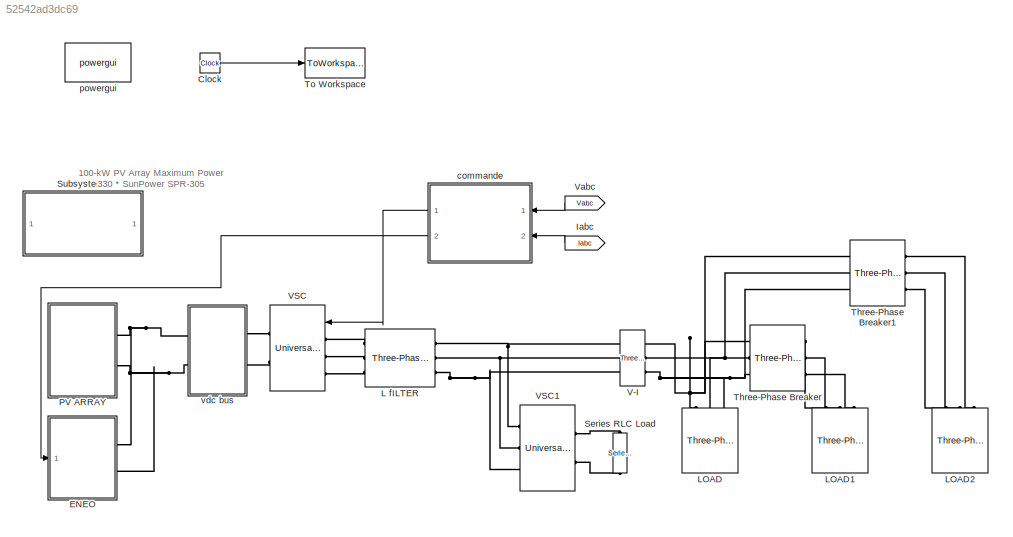
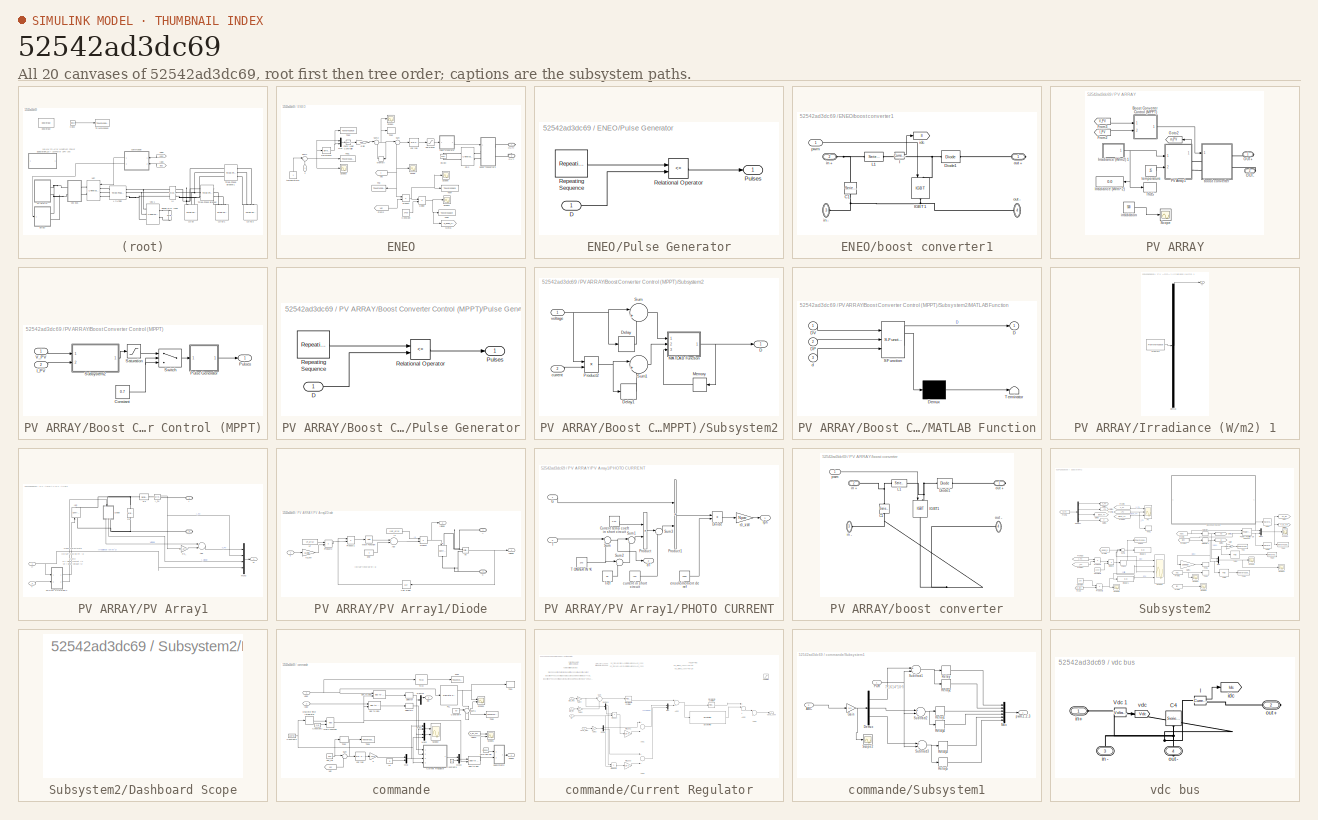
[diagram: thumbnail index - all 20 canvases of the model, root first then tree order]
MODEL slx_52542ad3dc69
KIND model
CONFIG AbsTol = auto
CONFIG EnableMultiTasking = off
CONFIG FixedStep = auto
CONFIG MaxStep = auto
CONFIG MinStep = auto
CONFIG RelTol = 1e-3
CONFIG SampleTimeConstraint = Unconstrained
CONFIG Solver = FixedStepAuto
CONFIG SolverName = FixedStepAuto
CONFIG StartTime = 0.0
CONFIG StopTime = 25
BLOCK [Clock] Clock
BLOCK [SubSystem] ENEO
  Ports = [1, 0, 0, 0, 0, 0, 2]
  RequestExecContextInheritance = off
  Variant = off
BLOCK [Constant] ENEO/Constant
  Value = 3400
BLOCK [Reference] ENEO/Difference  REF=simulink/Discrete/Difference
  Ports = [1, 1]
  SourceBlock = simulink/Discrete/Difference
  SourceType = Difference
BLOCK [Product] ENEO/Divide
  InputSameDT = off
  Inputs = */
  OutDataTypeStr = Inherit: Inherit via internal rule
  Ports = [2, 1]
BLOCK [Reference] ENEO/ENEO  REF=powerlib/Electrical
Sources/AC Voltage Source
  Ports = [0, 0, 0, 0, 0, 1, 1]
  SourceBlock = powerlib/Electrical\nSources/AC Voltage Source
  SourceType = AC Voltage Source
BLOCK [From] ENEO/From2
  CloseFcn = tagdialog Close
  GotoTag = Vdc
  TagVisibility = global
BLOCK [Reference] ENEO/Fuzzy Logic Controller  REF=fuzblock/Fuzzy Logic   (lib defined in mdl_858b3b3e7478)
Controller
  Ports = [1, 1]
  SourceBlock = fuzblock/Fuzzy Logic \nController
  SourceType = FIS
BLOCK [Gain] ENEO/Gain
  Gain = 0.09
  OutDataTypeStr = Inherit: Inherit via internal rule
  ParamDataTypeStr = Inherit: Inherit via internal rule
  SaturateOnIntegerOverflow = off
BLOCK [Goto] ENEO/Goto1
  GotoTag = p_eneo_flc9
  TagVisibility = global
BLOCK [Memory] ENEO/Memory
BLOCK [Mux] ENEO/Mux
  DisplayOption = bar
  Inputs = 2
  Ports = [2, 1]
BLOCK [PMIOPort] ENEO/OUT+
  Port = 1
  Side = Right
BLOCK [PMIOPort] ENEO/OUT-
  Port = 2
  Side = Right
BLOCK [Reference] ENEO/PD2  REF=powerlib/Power
Electronics/Universal Bridge
  Ports = [0, 0, 0, 0, 0, 2, 2]
  SourceBlock = powerlib/Power\nElectronics/Universal Bridge
  SourceType = Universal Bridge
BLOCK [Product] ENEO/Product
  InputSameDT = off
  OutDataTypeStr = Inherit: Inherit via internal rule
  Ports = [2, 1]
  RndMeth = Floor
  SaturateOnIntegerOverflow = off
BLOCK [SubSystem] ENEO/Pulse Generator
  Ports = [1, 1]
  RequestExecContextInheritance = off
  Variant = off
BLOCK [Inport] ENEO/Pulse Generator/D
  IconDisplay = Port number
BLOCK [Outport] ENEO/Pulse Generator/Pulses
  IconDisplay = Port number
BLOCK [RelationalOperator] ENEO/Pulse Generator/Relational Operator
  InputSameDT = off
  Operator = <=
  OutDataTypeStr = boolean
  Ports = [2, 1]
BLOCK [Reference] ENEO/Pulse Generator/Repeating Sequence  REF=simulink/Sources/Repeating
Sequence
  Ports = [0, 1]
  SourceBlock = simulink/Sources/Repeating\nSequence
  SourceType = Repeating table
BLOCK [Saturate] ENEO/Saturation
  InputPortMap = u0
  LowerLimit = 0
  Ports = [1, 1]
  UpperLimit = 1
BLOCK [Scope] ENEO/Scope
  NumInputPorts = 1
  Ports = [1]
  ScopeSpecificationString = Simulink.scopes.TimeScopeBlockCfg('CurrentConfiguration', extmgr.ConfigurationSet(extmgr.Configuration('Core','General UI',true),extmgr.Configuration('Core','Source UI',true),extmgr.Configuration('Sources','WiredSimulink',true,'DataLoggingVariableName','ScopeData1'),extmgr.Configuration('Visuals','Time Domain',true,'SerializedDisplays',{struct('MinYLimReal','-123.30318','MaxYLimReal','1109.72866',...<+1476ch>
BLOCK [Scope] ENEO/Scope1
  NumInputPorts = 1
  Ports = [1]
  ScopeSpecificationString = Simulink.scopes.TimeScopeBlockCfg('CurrentConfiguration', extmgr.ConfigurationSet(extmgr.Configuration('Core','General UI',true),extmgr.Configuration('Core','Source UI',true),extmgr.Configuration('Sources','WiredSimulink',true,'DataLoggingVariableName','ScopeData2'),extmgr.Configuration('Visuals','Time Domain',true,'SerializedDisplays',{struct('MinYLimReal','-90.76399','MaxYLimReal','817.70665','Y...<+1444ch>
BLOCK [Scope] ENEO/Scope3
  NumInputPorts = 1
  Ports = [1]
  ScopeSpecificationString = Simulink.scopes.TimeScopeBlockCfg('CurrentConfiguration', extmgr.ConfigurationSet(extmgr.Configuration('Core','General UI',true),extmgr.Configuration('Core','Source UI',true),extmgr.Configuration('Sources','WiredSimulink',true,'DataLoggingVariableName','PES3','DataLoggingSaveFormat','StructureWithTime','DataLoggingMaxPoints','5000000','DataLoggingDecimation','3','DataLoggingDecimateData',true,'Dat...<+1860ch>
BLOCK [Scope] ENEO/Scope4
  NumInputPorts = 1
  Ports = [1]
  ScopeSpecificationString = Simulink.scopes.TimeScopeBlockCfg('CurrentConfiguration', extmgr.ConfigurationSet(extmgr.Configuration('Core','General UI',true),extmgr.Configuration('Core','Source UI',true),extmgr.Configuration('Sources','WiredSimulink',true,'DataLoggingVariableName','ScopeData2','DataLoggingLimitDataPoints',true,'DataLoggingSaveFormat','Array','DataLoggingDecimation','1','DataLoggingDecimateData',true),extmgr.C...<+1596ch>
BLOCK [Scope] ENEO/Scope5
  NumInputPorts = 1
  Ports = [1]
  ScopeSpecificationString = Simulink.scopes.TimeScopeBlockCfg('CurrentConfiguration', extmgr.ConfigurationSet(extmgr.Configuration('Core','General UI',true),extmgr.Configuration('Core','Source UI',true),extmgr.Configuration('Sources','WiredSimulink',true,'DataLoggingVariableName','ScopeData3','DataLoggingLimitDataPoints',true,'DataLoggingSaveFormat','Array','DataLoggingDecimation','1','DataLoggingDecimateData',true),extmgr.C...<+1573ch>
BLOCK [Sum] ENEO/Sum
  IconShape = round
  InputSameDT = off
  Inputs = |+-
  OutDataTypeStr = Inherit: Inherit via internal rule
  Ports = [2, 1]
  SaturateOnIntegerOverflow = off
BLOCK [Sum] ENEO/Sum1
  IconShape = round
  InputSameDT = off
  Inputs = |+-
  OutDataTypeStr = Inherit: Inherit via internal rule
  Ports = [2, 1]
  SaturateOnIntegerOverflow = off
BLOCK [Sum] ENEO/Sum2
  IconShape = round
  InputSameDT = off
  Inputs = |++
  OutDataTypeStr = Inherit: Inherit via internal rule
  Ports = [2, 1]
  SaturateOnIntegerOverflow = off
BLOCK [ToWorkspace] ENEO/Thd
  FixptAsFi = on
  MaxDataPoints = inf
  Ports = [1]
  SampleTime = -1
  Save2DSignal = 3-D array (concatenate along third dimension)
  VariableName = i_eneo_flc9
BLOCK [ToWorkspace] ENEO/Thd1
  FixptAsFi = on
  MaxDataPoints = inf
  Ports = [1]
  SampleTime = -1
  Save2DSignal = 3-D array (concatenate along third dimension)
  VariableName = e_va_flc9
BLOCK [ToWorkspace] ENEO/Thd2
  FixptAsFi = on
  MaxDataPoints = inf
  Ports = [1]
  SampleTime = -1
  Save2DSignal = 3-D array (concatenate along third dimension)
  VariableName = i_flc9
BLOCK [ToWorkspace] ENEO/Thd3
  FixptAsFi = on
  MaxDataPoints = inf
  Ports = [1]
  SampleTime = -1
  Save2DSignal = 3-D array (concatenate along third dimension)
  VariableName = var_e_va_flc9
BLOCK [ToWorkspace] ENEO/Thd4
  FixptAsFi = on
  MaxDataPoints = inf
  Ports = [1]
  SampleTime = -1
  Save2DSignal = 3-D array (concatenate along third dimension)
  VariableName = p_eneo_flc9
BLOCK [ToWorkspace] ENEO/Thd5
  FixptAsFi = on
  MaxDataPoints = inf
  Ports = [1]
  SampleTime = -1
  Save2DSignal = 3-D array (concatenate along third dimension)
  VariableName = p_eneo_flc9c
BLOCK [From] ENEO/Vdc
  GotoTag = Il
  TagVisibility = global
BLOCK [SubSystem] ENEO/boost converter1
  Ports = [1, 0, 0, 0, 0, 2, 2]
  RequestExecContextInheritance = off
  Variant = off
BLOCK [Reference] ENEO/boost converter1/C1  REF=powerlib/Elements/Series RLC Branch
  AttributesFormatString = \n
  Ports = [0, 0, 0, 0, 0, 1, 1]
  SourceBlock = powerlib/Elements/Series RLC Branch
  SourceType = Series RLC Branch
BLOCK [Reference] ENEO/boost converter1/Diode1  REF=powerlib/Power
Electronics/Diode
  Ports = [0, 0, 0, 0, 0, 1, 1]
  SourceBlock = powerlib/Power\nElectronics/Diode
  SourceType = Diode
BLOCK [Reference] ENEO/boost converter1/I  REF=powerlib/Measurements/Current Measurement
  Ports = [0, 1, 0, 0, 0, 1, 1]
  SourceBlock = powerlib/Measurements/Current Measurement
  SourceType = Current Measurement
  UserDataPersistent = on
BLOCK [Reference] ENEO/boost converter1/IGBT1  REF=powerlib/Power
Electronics/IGBT
  Ports = [1, 0, 0, 0, 0, 1, 1]
  SourceBlock = powerlib/Power\nElectronics/IGBT
  SourceType = IGBT
BLOCK [Reference] ENEO/boost converter1/L1  REF=powerlib/Elements/Series RLC Branch
  Ports = [0, 0, 0, 0, 0, 1, 1]
  SourceBlock = powerlib/Elements/Series RLC Branch
  SourceType = Series RLC Branch
BLOCK [Goto] ENEO/boost converter1/idc
  GotoTag = Il
  TagVisibility = global
BLOCK [PMIOPort] ENEO/boost converter1/in +
  Port = 2
  Side = Left
BLOCK [PMIOPort] ENEO/boost converter1/in -
  Port = 3
  Side = Left
BLOCK [PMIOPort] ENEO/boost converter1/out +
  Port = 1
  Side = Right
BLOCK [PMIOPort] ENEO/boost converter1/out -
  Port = 4
  Side = Right
BLOCK [Inport] ENEO/boost converter1/pwm
  IconDisplay = Port number
BLOCK [Inport] ENEO/c
  IconDisplay = Port number
BLOCK [Constant] ENEO/temperature1
BLOCK [Reference] ENEO/vdc reg  REF=simulink/Continuous/PID Controller
  Ports = [1, 1]
  SourceBlock = simulink/Continuous/PID Controller
  SourceType = PID 1dof
BLOCK [From] Iabc
  GotoTag = Iabc
  TagVisibility = global
BLOCK [Reference] L fILTER   REF=powerlib/Elements/Three-Phase
Series RLC Branch
  AttributesFormatString = \n
  Ports = [0, 0, 0, 0, 0, 3, 3]
  SourceBlock = powerlib/Elements/Three-Phase\nSeries RLC Branch
  SourceType = Three-Phase Series RLC Branch
BLOCK [Reference] LOAD  REF=powerlib/Elements/Three-Phase
Series RLC Load
  AttributesFormatString = \n
  Ports = [0, 0, 0, 0, 0, 3]
  SourceBlock = powerlib/Elements/Three-Phase\nSeries RLC Load
  SourceType = Three-Phase Series RLC Load
BLOCK [Reference] LOAD1  REF=powerlib/Elements/Three-Phase
Series RLC Load
  AttributesFormatString = \n
  Ports = [0, 0, 0, 0, 0, 3]
  SourceBlock = powerlib/Elements/Three-Phase\nSeries RLC Load
  SourceType = Three-Phase Series RLC Load
BLOCK [Reference] LOAD2  REF=powerlib/Elements/Three-Phase
Series RLC Load
  AttributesFormatString = \n
  Ports = [0, 0, 0, 0, 0, 3]
  SourceBlock = powerlib/Elements/Three-Phase\nSeries RLC Load
  SourceType = Three-Phase Series RLC Load
BLOCK [SubSystem] PV ARRAY
  Ports = [0, 0, 0, 0, 0, 0, 2]
  RequestExecContextInheritance = off
  Variant = off
BLOCK [SubSystem] PV ARRAY/Boost Converter Control (MPPT)
  Ports = [2, 1]
  RequestExecContextInheritance = off
  Variant = off
BLOCK [Constant] PV ARRAY/Boost Converter Control (MPPT)/Constant
  Value = 0.7
BLOCK [Inport] PV ARRAY/Boost Converter Control (MPPT)/I_PV
  IconDisplay = Port number
  Port = 2
BLOCK [SubSystem] PV ARRAY/Boost Converter Control (MPPT)/Pulse Generator
  Ports = [1, 1]
  RequestExecContextInheritance = off
  Variant = off
BLOCK [Inport] PV ARRAY/Boost Converter Control (MPPT)/Pulse Generator/D
  IconDisplay = Port number
BLOCK [Outport] PV ARRAY/Boost Converter Control (MPPT)/Pulse Generator/Pulses
  IconDisplay = Port number
BLOCK [RelationalOperator] PV ARRAY/Boost Converter Control (MPPT)/Pulse Generator/Relational Operator
  InputSameDT = off
  Operator = <=
  OutDataTypeStr = boolean
  Ports = [2, 1]
BLOCK [Reference] PV ARRAY/Boost Converter Control (MPPT)/Pulse Generator/Repeating Sequence  REF=simulink/Sources/Repeating
Sequence
  Ports = [0, 1]
  SourceBlock = simulink/Sources/Repeating\nSequence
  SourceType = Repeating table
BLOCK [Outport] PV ARRAY/Boost Converter Control (MPPT)/Pulses
  IconDisplay = Port number
BLOCK [Saturate] PV ARRAY/Boost Converter Control (MPPT)/Saturation
  InputPortMap = u0
  LowerLimit = 0
  Ports = [1, 1]
  UpperLimit = 1
BLOCK [SubSystem] PV ARRAY/Boost Converter Control (MPPT)/Subsystem2
  Ports = [2, 1]
  RequestExecContextInheritance = off
  Variant = off
BLOCK [Outport] PV ARRAY/Boost Converter Control (MPPT)/Subsystem2/D
  IconDisplay = Port number
BLOCK [Delay] PV ARRAY/Boost Converter Control (MPPT)/Subsystem2/Delay
  DelayLength = 1
  InitialCondition = 0
  InputPortMap = u0
  Ports = [1, 1]
BLOCK [Delay] PV ARRAY/Boost Converter Control (MPPT)/Subsystem2/Delay1
  DelayLength = 1
  InitialCondition = 0
  InputPortMap = u0
  Ports = [1, 1]
BLOCK [SubSystem] PV ARRAY/Boost Converter Control (MPPT)/Subsystem2/MATLAB Function
  ErrorFcn = Stateflow.Translate.translate
  PermitHierarchicalResolution = ExplicitOnly
  Ports = [3, 1]
  RequestExecContextInheritance = off
  SFBlockType = MATLAB Function
  TreatAsAtomicUnit = on
  Variant = off
BLOCK [Demux] PV ARRAY/Boost Converter Control (MPPT)/Subsystem2/MATLAB Function/ Demux 
  Outputs = 1
  Ports = [1, 1]
BLOCK [S-Function] PV ARRAY/Boost Converter Control (MPPT)/Subsystem2/MATLAB Function/ SFunction 
  EnableBusSupport = on
  FunctionName = sf_sfun
  PortCounts = [3 2]
  Ports = [3, 2]
  SFcnIsStateOwnerBlock = off
  SFunctionDeploymentMode = off
  Tag = Stateflow S-Function management_2_sources_21_03_202_flc_9aa 2
BLOCK [Terminator] PV ARRAY/Boost Converter Control (MPPT)/Subsystem2/MATLAB Function/ Terminator 
BLOCK [Outport] PV ARRAY/Boost Converter Control (MPPT)/Subsystem2/MATLAB Function/D
  IconDisplay = Port number
BLOCK [Inport] PV ARRAY/Boost Converter Control (MPPT)/Subsystem2/MATLAB Function/DP
  IconDisplay = Port number
  Port = 2
BLOCK [Inport] PV ARRAY/Boost Converter Control (MPPT)/Subsystem2/MATLAB Function/DV
  IconDisplay = Port number
BLOCK [Inport] PV ARRAY/Boost Converter Control (MPPT)/Subsystem2/MATLAB Function/d
  IconDisplay = Port number
  Port = 3
BLOCK [Memory] PV ARRAY/Boost Converter Control (MPPT)/Subsystem2/Memory
  X0 = 0.7
BLOCK [Product] PV ARRAY/Boost Converter Control (MPPT)/Subsystem2/Product2
  InputSameDT = off
  OutDataTypeStr = Inherit: Inherit via internal rule
  Ports = [2, 1]
  RndMeth = Floor
  SaturateOnIntegerOverflow = off
BLOCK [Sum] PV ARRAY/Boost Converter Control (MPPT)/Subsystem2/Sum
  IconShape = round
  InputSameDT = off
  Inputs = |+-
  OutDataTypeStr = Inherit: Inherit via internal rule
  Ports = [2, 1]
  SaturateOnIntegerOverflow = off
BLOCK [Sum] PV ARRAY/Boost Converter Control (MPPT)/Subsystem2/Sum1
  IconShape = round
  InputSameDT = off
  Inputs = |+-
  OutDataTypeStr = Inherit: Inherit via internal rule
  Ports = [2, 1]
  SaturateOnIntegerOverflow = off
BLOCK [Inport] PV ARRAY/Boost Converter Control (MPPT)/Subsystem2/current 
  IconDisplay = Port number
  Port = 2
BLOCK [Inport] PV ARRAY/Boost Converter Control (MPPT)/Subsystem2/voltage 
  IconDisplay = Port number
BLOCK [Switch] PV ARRAY/Boost Converter Control (MPPT)/Switch
  Criteria = u2 > Threshold
  InputSameDT = off
  SaturateOnIntegerOverflow = off
BLOCK [Inport] PV ARRAY/Boost Converter Control (MPPT)/V_PV
  IconDisplay = Port number
BLOCK [From] PV ARRAY/From2
  CloseFcn = tagdialog Close
  GotoTag = I_PV
  TagVisibility = global
BLOCK [From] PV ARRAY/From3
  CloseFcn = tagdialog Close
  GotoTag = V_PV
  TagVisibility = global
BLOCK [Goto] PV ARRAY/Goto2
  GotoTag = m_PV
  TagVisibility = global
BLOCK [SubSystem] PV ARRAY/Irradiance (W//m2) 1
  ClipboardFcn = sigbuilder_block('clipboard');
  CloseFcn = sigbuilder_block('close');
  ContinueFcn = sigbuilder_block('continue')
  CopyFcn = sigbuilder_block('copy');
  DeleteFcn = sigbuilder_block('delete');
  LoadFcn = sigbuilder_block('load');
  MaskHideContents = on
  ModelCloseFcn = sigbuilder_block('modelClose');
  NameChangeFcn = sigbuilder_block('namechange');
  OpenFcn = sigbuilder_block('open',[6 33 1188 543 ]);
  PauseFcn = sigbuilder_block('pause')
  Ports = [0, 1]
  PreSaveFcn = sigbuilder_block('preSave');
  RequestExecContextInheritance = off
  StartFcn = sigbuilder_block('start');
  StopFcn = sigbuilder_block('stop');
  Tag = STV Subsys
  Variant = off
BLOCK [Demux] PV ARRAY/Irradiance (W//m2) 1/Demux
  Outputs = 1
  Ports = [1, 1]
  Tag = STV Demux
BLOCK [FromWorkspace] PV ARRAY/Irradiance (W//m2) 1/FromWs
  SampleTime = 0
  Tag = STV FromWs
  VariableName = tuvar
  ZeroCross = on
BLOCK [Outport] PV ARRAY/Irradiance (W//m2) 1/Ir
  IconDisplay = Port number
  Tag = STV Outport
BLOCK [Display] PV ARRAY/Irradiance (W//m^2)
  Decimation = 1000
  Format = bank
  Ports = [1]
BLOCK [PMIOPort] PV ARRAY/OUT+
  Port = 1
  Side = Right
BLOCK [PMIOPort] PV ARRAY/OUT-
  Port = 2
  Side = Right
BLOCK [SubSystem] PV ARRAY/PV Array1
  Ports = [2, 1, 0, 0, 0, 0, 2]
  RequestExecContextInheritance = off
  Variant = off
BLOCK [PMIOPort] PV ARRAY/PV Array1/+
  Port = 1
  Side = Right
BLOCK [PMIOPort] PV ARRAY/PV Array1/-
  Port = 2
  Side = Right
BLOCK [Sum] PV ARRAY/PV Array1/Add
  InputSameDT = off
  Inputs = +-
  OutDataTypeStr = Inherit: Inherit via internal rule
  Ports = [2, 1]
  SaturateOnIntegerOverflow = off
BLOCK [SubSystem] PV ARRAY/PV Array1/Diode
  Ports = [1, 2, 0, 0, 0, 1, 1]
  RequestExecContextInheritance = off
  Variant = off
BLOCK [PMIOPort] PV ARRAY/PV Array1/Diode/A
  Port = 1
  Side = Left
BLOCK [Sum] PV ARRAY/PV Array1/Diode/Add
  InputSameDT = off
  Inputs = +-
  OutDataTypeStr = Inherit: Inherit via internal rule
  Ports = [2, 1]
  SaturateOnIntegerOverflow = off
BLOCK [Reference] PV ARRAY/PV Array1/Diode/Id  REF=powerlib/Electrical
Sources/Controlled Current Source
  Ports = [1, 0, 0, 0, 0, 1, 1]
  SourceBlock = powerlib/Electrical\nSources/Controlled Current Source
  SourceType = Controlled Current Source
BLOCK [Outport] PV ARRAY/PV Array1/Diode/Idiode
  IconDisplay = Port number
  Port = 2
BLOCK [Constant] PV ARRAY/PV Array1/Diode/Is
  Value = Isat_array
BLOCK [PMIOPort] PV ARRAY/PV Array1/Diode/K
  Port = 2
  Side = Right
BLOCK [Math] PV ARRAY/PV Array1/Diode/Math Function
  Ports = [1, 1]
BLOCK [Product] PV ARRAY/PV Array1/Diode/Product
  InputSameDT = off
  OutDataTypeStr = Inherit: Inherit via internal rule
  Ports = [2, 1]
  SaturateOnIntegerOverflow = off
BLOCK [Product] PV ARRAY/PV Array1/Diode/Product1
  InputSameDT = off
  Inputs = */
  OutDataTypeStr = Inherit: Inherit via internal rule
  Ports = [2, 1]
  SaturateOnIntegerOverflow = off
BLOCK [Product] PV ARRAY/PV Array1/Diode/Product2
  InputSameDT = off
  OutDataTypeStr = Inherit: Inherit via internal rule
  Ports = [2, 1]
  SaturateOnIntegerOverflow = off
BLOCK [Inport] PV ARRAY/PV Array1/Diode/T
  IconDisplay = Port number
BLOCK [UnitDelay] PV ARRAY/PV Array1/Diode/Unit Delay
  InputProcessing = Elements as channels (sample based)
  SampleTime = -1
BLOCK [Constant] PV ARRAY/PV Array1/Diode/VT
  Value = VT_array
BLOCK [Reference] PV ARRAY/PV Array1/Diode/Vd  REF=powerlib/Measurements/Voltage Measurement
  Ports = [0, 1, 0, 0, 0, 2]
  SourceBlock = powerlib/Measurements/Voltage Measurement
  SourceType = Voltage Measurement
BLOCK [Outport] PV ARRAY/PV Array1/Diode/Vdiode
  IconDisplay = Port number
BLOCK [Constant] PV ARRAY/PV Array1/Diode/one
BLOCK [Gain] PV ARRAY/PV Array1/Diode/t0_kW
  Gain = 1/298
  OutDataTypeStr = Inherit: Inherit via internal rule
  ParamDataTypeStr = Inherit: Inherit via internal rule
  SaturateOnIntegerOverflow = off
BLOCK [Reference] PV ARRAY/PV Array1/I_PV  REF=powerlib/Measurements/Current Measurement
  Ports = [0, 1, 0, 0, 0, 1, 1]
  SourceBlock = powerlib/Measurements/Current Measurement
  SourceType = Current Measurement
BLOCK [Reference] PV ARRAY/PV Array1/Iph  REF=powerlib/Electrical
Sources/Controlled Current Source
  Ports = [1, 0, 0, 0, 0, 1, 1]
  SourceBlock = powerlib/Electrical\nSources/Controlled Current Source
  SourceType = Controlled Current Source
BLOCK [Inport] PV ARRAY/PV Array1/Ir
  IconDisplay = Port number
BLOCK [Mux] PV ARRAY/PV Array1/Mux3
  DisplayOption = bar
  Ports = [4, 1]
BLOCK [SubSystem] PV ARRAY/PV Array1/PHOTO CURRENT
  Ports = [2, 2]
  RequestExecContextInheritance = off
  Variant = off
BLOCK [Constant] PV ARRAY/PV Array1/PHOTO CURRENT/Current temp coeft  in short circuit
  Value = Ksc
BLOCK [Product] PV ARRAY/PV Array1/PHOTO CURRENT/Divide
  InputSameDT = off
  Inputs = */
  OutDataTypeStr = Inherit: Inherit via internal rule
  Ports = [2, 1]
  RndMeth = Floor
  SaturateOnIntegerOverflow = off
BLOCK [Inport] PV ARRAY/PV Array1/PHOTO CURRENT/G
  IconDisplay = Port number
BLOCK [Outport] PV ARRAY/PV Array1/PHOTO CURRENT/Iph 
  IconDisplay = Port number
BLOCK [Product] PV ARRAY/PV Array1/PHOTO CURRENT/Product
  InputSameDT = off
  OutDataTypeStr = Inherit: Inherit via internal rule
  Ports = [2, 1]
  RndMeth = Floor
  SaturateOnIntegerOverflow = off
BLOCK [Product] PV ARRAY/PV Array1/PHOTO CURRENT/Product1
  InputSameDT = off
  OutDataTypeStr = Inherit: Inherit via internal rule
  Ports = [2, 1]
  RndMeth = Floor
  SaturateOnIntegerOverflow = off
BLOCK [Sum] PV ARRAY/PV Array1/PHOTO CURRENT/Sum
  IconShape = round
  InputSameDT = off
  Inputs = |++
  OutDataTypeStr = Inherit: Inherit via internal rule
  Ports = [2, 1]
  SaturateOnIntegerOverflow = off
BLOCK [Sum] PV ARRAY/PV Array1/PHOTO CURRENT/Sum1
  IconShape = round
  InputSameDT = off
  Inputs = |+-
  OutDataTypeStr = Inherit: Inherit via internal rule
  Ports = [2, 1]
  SaturateOnIntegerOverflow = off
BLOCK [Sum] PV ARRAY/PV Array1/PHOTO CURRENT/Sum2
  IconShape = round
  InputSameDT = off
  Inputs = |++
  OutDataTypeStr = Inherit: Inherit via internal rule
  Ports = [2, 1]
  SaturateOnIntegerOverflow = off
BLOCK [Sum] PV ARRAY/PV Array1/PHOTO CURRENT/Sum3
  IconShape = round
  InputSameDT = off
  Inputs = |++
  OutDataTypeStr = Inherit: Inherit via internal rule
  Ports = [2, 1]
  SaturateOnIntegerOverflow = off
BLOCK [Inport] PV ARRAY/PV Array1/PHOTO CURRENT/T
  IconDisplay = Port number
  Port = 2
BLOCK [Constant] PV ARRAY/PV Array1/PHOTO CURRENT/T ONVER IN °K 
  Value = 273
BLOCK [Constant] PV ARRAY/PV Array1/PHOTO CURRENT/Tref
  Value = 25
BLOCK [Constant] PV ARRAY/PV Array1/PHOTO CURRENT/current in short circuit
  Value = Iph
BLOCK [Outport] PV ARRAY/PV Array1/PHOTO CURRENT/dT
  IconDisplay = Port number
  Port = 2
BLOCK [Constant] PV ARRAY/PV Array1/PHOTO CURRENT/ensoleillement de ref
  Value = 1000
BLOCK [Gain] PV ARRAY/PV Array1/PHOTO CURRENT/t0_kW
  Gain = Npar
  OutDataTypeStr = Inherit: Inherit via internal rule
  ParamDataTypeStr = Inherit: Inherit via internal rule
  SaturateOnIntegerOverflow = off
BLOCK [Reference] PV ARRAY/PV Array1/Rp  REF=powerlib/Elements/Series RLC Branch
  Ports = [0, 0, 0, 0, 0, 1, 1]
  SourceBlock = powerlib/Elements/Series RLC Branch
  SourceType = Series RLC Branch
BLOCK [Reference] PV ARRAY/PV Array1/Rs  REF=powerlib/Elements/Series RLC Branch
  Ports = [0, 0, 0, 0, 0, 1, 1]
  SourceBlock = powerlib/Elements/Series RLC Branch
  SourceType = Series RLC Branch
BLOCK [Gain] PV ARRAY/PV Array1/Rs_
  Gain = Rs_array
  OutDataTypeStr = Inherit: Inherit via internal rule
  ParamDataTypeStr = Inherit: Inherit via internal rule
  SaturateOnIntegerOverflow = off
BLOCK [Inport] PV ARRAY/PV Array1/T
  IconDisplay = Port number
  Port = 2
BLOCK [Outport] PV ARRAY/PV Array1/m
  IconDisplay = Port number
BLOCK [Scope] PV ARRAY/Scope
  NumInputPorts = 1
  Ports = [1]
  ScopeSpecificationString = C++SS(StrPVP('SaveName','ScopeData1'),StrPVP('LimitDataPoints','on'),StrPVP('DataFormat','Array'),StrPVP('Decimation','1'),StrPVP('BlockParamSampleInput','off'))
BLOCK [ToWorkspace] PV ARRAY/Thd5
  FixptAsFi = on
  MaxDataPoints = inf
  Ports = [1]
  SampleTime = -1
  Save2DSignal = 3-D array (concatenate along third dimension)
  VariableName = irra
BLOCK [SubSystem] PV ARRAY/boost converter
  Ports = [1, 0, 0, 0, 0, 2, 2]
  RequestExecContextInheritance = off
  Variant = off
BLOCK [Reference] PV ARRAY/boost converter/C1  REF=powerlib/Elements/Series RLC Branch
  AttributesFormatString = \n
  Ports = [0, 0, 0, 0, 0, 1, 1]
  SourceBlock = powerlib/Elements/Series RLC Branch
  SourceType = Series RLC Branch
BLOCK [Reference] PV ARRAY/boost converter/Diode1  REF=powerlib/Power
Electronics/Diode
  Ports = [0, 0, 0, 0, 0, 1, 1]
  SourceBlock = powerlib/Power\nElectronics/Diode
  SourceType = Diode
BLOCK [Reference] PV ARRAY/boost converter/IGBT1  REF=powerlib/Power
Electronics/IGBT
  Ports = [1, 0, 0, 0, 0, 1, 1]
  SourceBlock = powerlib/Power\nElectronics/IGBT
  SourceType = IGBT
BLOCK [Reference] PV ARRAY/boost converter/L1  REF=powerlib/Elements/Series RLC Branch
  Ports = [0, 0, 0, 0, 0, 1, 1]
  SourceBlock = powerlib/Elements/Series RLC Branch
  SourceType = Series RLC Branch
BLOCK [PMIOPort] PV ARRAY/boost converter/in +
  Port = 2
  Side = Left
BLOCK [PMIOPort] PV ARRAY/boost converter/in -
  Port = 3
  Side = Left
BLOCK [PMIOPort] PV ARRAY/boost converter/out +
  Port = 1
  Side = Right
BLOCK [PMIOPort] PV ARRAY/boost converter/out -
  Port = 4
  Side = Right
BLOCK [Inport] PV ARRAY/boost converter/pwm
  IconDisplay = Port number
BLOCK [Constant] PV ARRAY/irradiation
  Value = 500
BLOCK [Constant] PV ARRAY/temperature
  Value = 25
BLOCK [Reference] Series RLC Load  REF=powerlib/Elements/Series RLC Load
  AttributesFormatString = \n
  Ports = [0, 0, 0, 0, 0, 1, 1]
  SourceBlock = powerlib/Elements/Series RLC Load
  SourceType = Series RLC Load
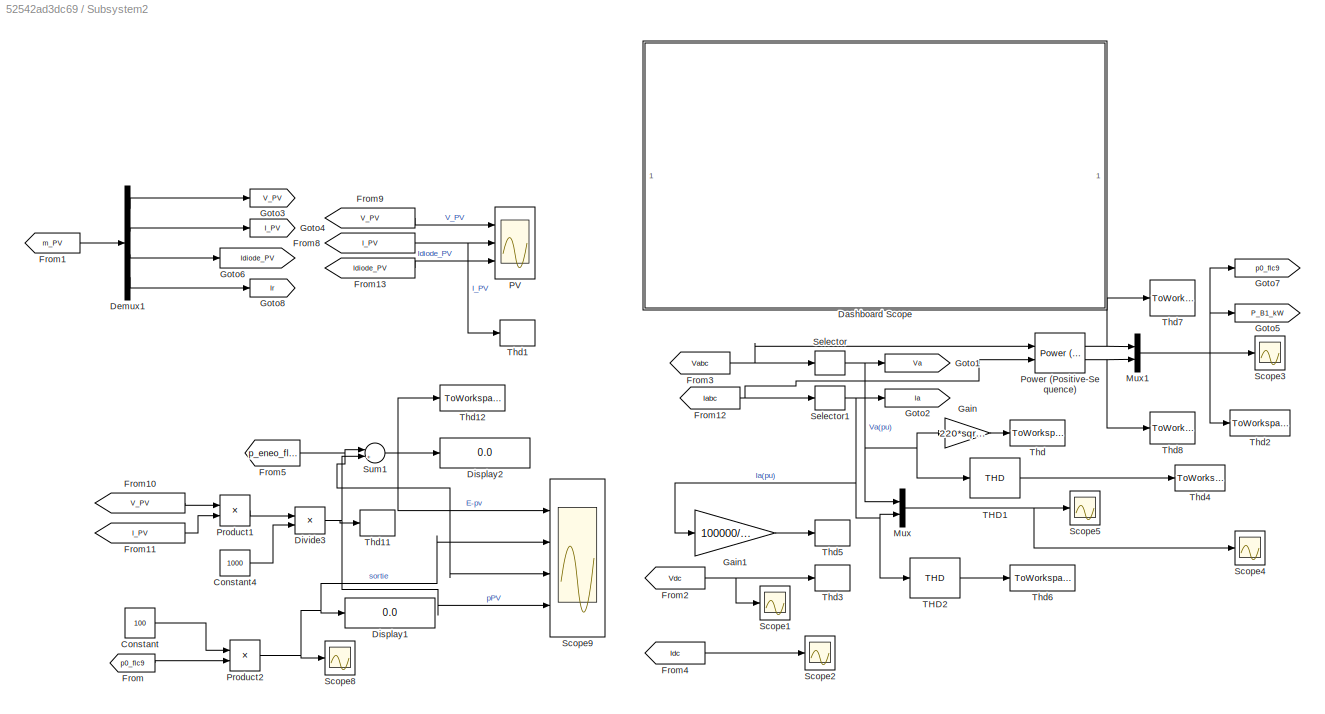
BLOCK [SubSystem] Subsystem2
  Ports = []
  RequestExecContextInheritance = off
  Variant = off
BLOCK [Constant] Subsystem2/Constant
  Value = 100
BLOCK [Constant] Subsystem2/Constant4
  Value = 1000
BLOCK [SubSystem] Subsystem2/Dashboard Scope
  DialogController = hmiCreateDDGDialog
  IsWebBlock = on
  MaskHideContents = on
  Ports = []
  RequestExecContextInheritance = off
  Variant = off
BLOCK [Demux] Subsystem2/Demux1
  DisplayOption = bar
  Ports = [1, 4]
BLOCK [Display] Subsystem2/Display1
  Decimation = 1
  Ports = [1]
BLOCK [Display] Subsystem2/Display2
  Decimation = 1
  Ports = [1]
BLOCK [Product] Subsystem2/Divide3
  InputSameDT = off
  Inputs = */
  OutDataTypeStr = Inherit: Inherit via internal rule
  Ports = [2, 1]
  RndMeth = Floor
  SaturateOnIntegerOverflow = off
BLOCK [From] Subsystem2/From
  GotoTag = p0_flc9
  TagVisibility = global
BLOCK [From] Subsystem2/From1
  GotoTag = m_PV
  TagVisibility = global
BLOCK [From] Subsystem2/From10
  GotoTag = V_PV
  TagVisibility = global
BLOCK [From] Subsystem2/From11
  GotoTag = I_PV
  TagVisibility = global
BLOCK [From] Subsystem2/From12
  CloseFcn = tagdialog Close
  GotoTag = Iabc
  TagVisibility = global
BLOCK [From] Subsystem2/From13
  GotoTag = Idiode_PV
  TagVisibility = global
BLOCK [From] Subsystem2/From2
  CloseFcn = tagdialog Close
  GotoTag = Vdc
  TagVisibility = global
BLOCK [From] Subsystem2/From3
  CloseFcn = tagdialog Close
  GotoTag = Vabc
  TagVisibility = global
BLOCK [From] Subsystem2/From4
  CloseFcn = tagdialog Close
  GotoTag = Idc
  TagVisibility = global
BLOCK [From] Subsystem2/From5
  GotoTag = p_eneo_flc9
  TagVisibility = global
BLOCK [From] Subsystem2/From8
  GotoTag = I_PV
  TagVisibility = global
BLOCK [From] Subsystem2/From9
  GotoTag = V_PV
  TagVisibility = global
BLOCK [Gain] Subsystem2/Gain
  Gain = 220*sqrt(2)
  OutDataTypeStr = Inherit: Inherit via internal rule
  ParamDataTypeStr = Inherit: Inherit via internal rule
  SaturateOnIntegerOverflow = off
BLOCK [Gain] Subsystem2/Gain1
  Gain = 100000/660
  OutDataTypeStr = Inherit: Inherit via internal rule
  ParamDataTypeStr = Inherit: Inherit via internal rule
  SaturateOnIntegerOverflow = off
BLOCK [Goto] Subsystem2/Goto1
  GotoTag = Va
  TagVisibility = global
BLOCK [Goto] Subsystem2/Goto2
  GotoTag = Ia
  TagVisibility = global
BLOCK [Goto] Subsystem2/Goto3
  GotoTag = V_PV
  TagVisibility = global
BLOCK [Goto] Subsystem2/Goto4
  GotoTag = I_PV
  TagVisibility = global
BLOCK [Goto] Subsystem2/Goto5
  GotoTag = P_B1_kW
  TagVisibility = global
BLOCK [Goto] Subsystem2/Goto6
  GotoTag = Idiode_PV
  TagVisibility = global
BLOCK [Goto] Subsystem2/Goto7
  GotoTag = p0_flc9
  TagVisibility = global
BLOCK [Goto] Subsystem2/Goto8
  GotoTag = Ir
  TagVisibility = global
BLOCK [Mux] Subsystem2/Mux
  DisplayOption = bar
  Inputs = 2
  Ports = [2, 1]
BLOCK [Mux] Subsystem2/Mux1
  DisplayOption = bar
  Inputs = 2
  Ports = [2, 1]
BLOCK [Scope] Subsystem2/PV
  NumInputPorts = 3
  Ports = [3]
  ScopeSpecificationString = Simulink.scopes.TimeScopeBlockCfg('CurrentConfiguration', extmgr.ConfigurationSet(extmgr.Configuration('Core','General UI',true),extmgr.Configuration('Core','Source UI',true),extmgr.Configuration('Sources','WiredSimulink',true,'DataLoggingVariableName','ScopeData2','DataLoggingSaveFormat','StructureWithTime','DataLoggingDecimation','100','DataLoggingDecimateData',true),extmgr.Configuration('Visual...<+3106ch>
BLOCK [Reference] Subsystem2/Power (Positive-Sequence)  REF=powerlib_meascontrol/Measurements/Power
(Positive-Sequence)
  Ports = [2, 2]
  SourceBlock = powerlib_meascontrol/Measurements/Power\n(Positive-Sequence)
  SourceType = Power (Positive-Sequence)
BLOCK [Product] Subsystem2/Product1
  InputSameDT = off
  OutDataTypeStr = Inherit: Inherit via internal rule
  Ports = [2, 1]
  RndMeth = Floor
  SaturateOnIntegerOverflow = off
BLOCK [Product] Subsystem2/Product2
  InputSameDT = off
  OutDataTypeStr = Inherit: Inherit via internal rule
  Ports = [2, 1]
  RndMeth = Floor
  SaturateOnIntegerOverflow = off
BLOCK [Scope] Subsystem2/Scope1
  NumInputPorts = 1
  Ports = [1]
  ScopeSpecificationString = Simulink.scopes.TimeScopeBlockCfg('CurrentConfiguration', extmgr.ConfigurationSet(extmgr.Configuration('Core','General UI',true),extmgr.Configuration('Core','Source UI',true),extmgr.Configuration('Sources','WiredSimulink',true,'DataLoggingVariableName','PES3','DataLoggingSaveFormat','StructureWithTime','DataLoggingMaxPoints','5000000','DataLoggingDecimation','3','DataLoggingDecimateData',true,'Dat...<+1895ch>
BLOCK [Scope] Subsystem2/Scope2
  NumInputPorts = 1
  Ports = [1]
  ScopeSpecificationString = Simulink.scopes.TimeScopeBlockCfg('CurrentConfiguration', extmgr.ConfigurationSet(extmgr.Configuration('Core','General UI',true),extmgr.Configuration('Core','Source UI',true),extmgr.Configuration('Sources','WiredSimulink',true,'DataLoggingVariableName','PES4','DataLoggingSaveFormat','StructureWithTime','DataLoggingMaxPoints','5000000','DataLoggingDecimation','3','DataLoggingDecimateData',true,'Dat...<+1847ch>
BLOCK [Scope] Subsystem2/Scope3
  NumInputPorts = 1
  Ports = [1]
  ScopeSpecificationString = Simulink.scopes.TimeScopeBlockCfg('CurrentConfiguration', extmgr.ConfigurationSet(extmgr.Configuration('Core','General UI',true),extmgr.Configuration('Core','Source UI',true),extmgr.Configuration('Sources','WiredSimulink',true,'DataLoggingVariableName','ScopeData1','DataLoggingSaveFormat','StructureWithTime','DataLoggingMaxPoints','5000000','DataLoggingDecimation','3','DataLoggingDecimateData',tru...<+1897ch>
BLOCK [Scope] Subsystem2/Scope4
  NumInputPorts = 1
  Ports = [1]
  ScopeSpecificationString = Simulink.scopes.TimeScopeBlockCfg('CurrentConfiguration', extmgr.ConfigurationSet(extmgr.Configuration('Core','General UI',true),extmgr.Configuration('Core','Source UI',true),extmgr.Configuration('Sources','WiredSimulink',true,'DataLoggingVariableName','von','DataLoggingSaveFormat','StructureWithTime','DataLoggingMaxPoints','5000000','DataLoggingDecimation','3','DataLoggingDecimateData',true,'Data...<+1865ch>
BLOCK [Scope] Subsystem2/Scope5
  NumInputPorts = 1
  Ports = [1]
  ScopeSpecificationString = Simulink.scopes.TimeScopeBlockCfg('CurrentConfiguration', extmgr.ConfigurationSet(extmgr.Configuration('Core','General UI',true),extmgr.Configuration('Core','Source UI',true),extmgr.Configuration('Sources','WiredSimulink',true,'DataLoggingVariableName','ScopeData3','DataLoggingSaveFormat','StructureWithTime','DataLoggingMaxPoints','5000000','DataLoggingDecimation','3','DataLoggingDecimateData',tru...<+1926ch>
BLOCK [Scope] Subsystem2/Scope8
  NumInputPorts = 1
  Ports = [1]
  ScopeSpecificationString = C++SS(StrPVP('SaveName','ScopeData1'),StrPVP('LimitDataPoints','on'),StrPVP('DataFormat','Array'),StrPVP('Decimation','1'),StrPVP('BlockParamSampleInput','off'))
BLOCK [Scope] Subsystem2/Scope9
  NumInputPorts = 4
  Ports = [4]
  ScopeSpecificationString = Simulink.scopes.TimeScopeBlockCfg('CurrentConfiguration', extmgr.ConfigurationSet(extmgr.Configuration('Core','General UI',true),extmgr.Configuration('Core','Source UI',true),extmgr.Configuration('Sources','WiredSimulink',true,'DataLoggingVariableName','ScopeData4','DataLoggingLimitDataPoints',true,'DataLoggingSaveFormat','Array','DataLoggingDecimation','1','DataLoggingDecimateData',true),extmgr.C...<+1582ch>
BLOCK [Selector] Subsystem2/Selector
  IndexOptions = Index vector (dialog)
  Indices = [1]
  InputPortWidth = 3
  OutputSizes = 1
  Ports = [1, 1]
BLOCK [Selector] Subsystem2/Selector1
  IndexOptions = Index vector (dialog)
  Indices = [1]
  InputPortWidth = 3
  OutputSizes = 1
  Ports = [1, 1]
BLOCK [Sum] Subsystem2/Sum1
  IconShape = round
  InputSameDT = off
  Inputs = |++
  OutDataTypeStr = Inherit: Inherit via internal rule
  Ports = [2, 1]
  SaturateOnIntegerOverflow = off
BLOCK [Reference] Subsystem2/THD1  REF=powerlib_meascontrol/Measurements/THD
  Ports = [1, 1]
  SourceBlock = powerlib_meascontrol/Measurements/THD
  SourceType = THD
BLOCK [Reference] Subsystem2/THD2  REF=powerlib_meascontrol/Measurements/THD
  Ports = [1, 1]
  SourceBlock = powerlib_meascontrol/Measurements/THD
  SourceType = THD
BLOCK [ToWorkspace] Subsystem2/Thd
  FixptAsFi = on
  MaxDataPoints = inf
  Ports = [1]
  SampleTime = -1
  Save2DSignal = 3-D array (concatenate along third dimension)
  VariableName = v_a_flc9
BLOCK [ToWorkspace] Subsystem2/Thd1
  FixptAsFi = on
  MaxDataPoints = inf
  Ports = [1]
  SampleTime = -1
  Save2DSignal = 3-D array (concatenate along third dimension)
  VariableName = i_pv_flc9
BLOCK [ToWorkspace] Subsystem2/Thd11
  FixptAsFi = on
  MaxDataPoints = inf
  Ports = [1]
  SampleTime = -1
  Save2DSignal = 3-D array (concatenate along third dimension)
  VariableName = ppv_pi
BLOCK [ToWorkspace] Subsystem2/Thd12
  FixptAsFi = on
  MaxDataPoints = inf
  Ports = [1]
  SampleTime = -1
  Save2DSignal = 3-D array (concatenate along third dimension)
  VariableName = p_suivie_flc9
BLOCK [ToWorkspace] Subsystem2/Thd2
  FixptAsFi = on
  MaxDataPoints = inf
  Ports = [1]
  SampleTime = -1
  Save2DSignal = 3-D array (concatenate along third dimension)
  VariableName = p_q_flc9
BLOCK [ToWorkspace] Subsystem2/Thd3
  FixptAsFi = on
  MaxDataPoints = inf
  Ports = [1]
  SampleTime = -1
  Save2DSignal = 3-D array (concatenate along third dimension)
  VariableName = vdc_flc9
BLOCK [ToWorkspace] Subsystem2/Thd4
  FixptAsFi = on
  MaxDataPoints = inf
  Ports = [1]
  SampleTime = -1
  Save2DSignal = 3-D array (concatenate along third dimension)
  VariableName = thd_v_flc9
BLOCK [ToWorkspace] Subsystem2/Thd5
  FixptAsFi = on
  MaxDataPoints = inf
  Ports = [1]
  SampleTime = -1
  Save2DSignal = 3-D array (concatenate along third dimension)
  VariableName = i_a_flc9
BLOCK [ToWorkspace] Subsystem2/Thd6
  FixptAsFi = on
  MaxDataPoints = inf
  Ports = [1]
  SampleTime = -1
  Save2DSignal = 3-D array (concatenate along third dimension)
  VariableName = thd_i_flc9
BLOCK [ToWorkspace] Subsystem2/Thd7
  FixptAsFi = on
  MaxDataPoints = inf
  Ports = [1]
  SampleTime = -1
  Save2DSignal = 3-D array (concatenate along third dimension)
  VariableName = p0_flc9
BLOCK [ToWorkspace] Subsystem2/Thd8
  FixptAsFi = on
  MaxDataPoints = inf
  Ports = [1]
  SampleTime = -1
  Save2DSignal = 3-D array (concatenate along third dimension)
  VariableName = q0_flc9
BLOCK [Reference] Three-Phase Breaker  REF=powerlib/Elements/Three-Phase Breaker
  Ports = [0, 0, 0, 0, 0, 3, 3]
  SourceBlock = powerlib/Elements/Three-Phase Breaker
  SourceType = Three-Phase Breaker
BLOCK [Reference] Three-Phase Breaker1  REF=powerlib/Elements/Three-Phase Breaker
  Ports = [0, 0, 0, 0, 0, 3, 3]
  SourceBlock = powerlib/Elements/Three-Phase Breaker
  SourceType = Three-Phase Breaker
BLOCK [ToWorkspace] To Workspace
  FixptAsFi = on
  MaxDataPoints = inf
  Ports = [1]
  SampleTime = -1
  Save2DSignal = 3-D array (concatenate along third dimension)
  VariableName = t_p
BLOCK [Reference] V-I   REF=powerlib/Measurements/Three-Phase
V-I Measurement
  Ports = [0, 0, 0, 0, 0, 3, 3]
  SourceBlock = powerlib/Measurements/Three-Phase\nV-I Measurement
  SourceType = Three-Phase VI Measurement
BLOCK [Reference] VSC  REF=powerlib/Power
Electronics/Universal Bridge
  Ports = [1, 0, 0, 0, 0, 3, 2]
  SourceBlock = powerlib/Power\nElectronics/Universal Bridge
  SourceType = Universal Bridge
BLOCK [Reference] VSC1  REF=powerlib/Power
Electronics/Universal Bridge
  Ports = [0, 0, 0, 0, 0, 3, 2]
  SourceBlock = powerlib/Power\nElectronics/Universal Bridge
  SourceType = Universal Bridge
BLOCK [From] Vabc
  GotoTag = Vabc
  TagVisibility = global
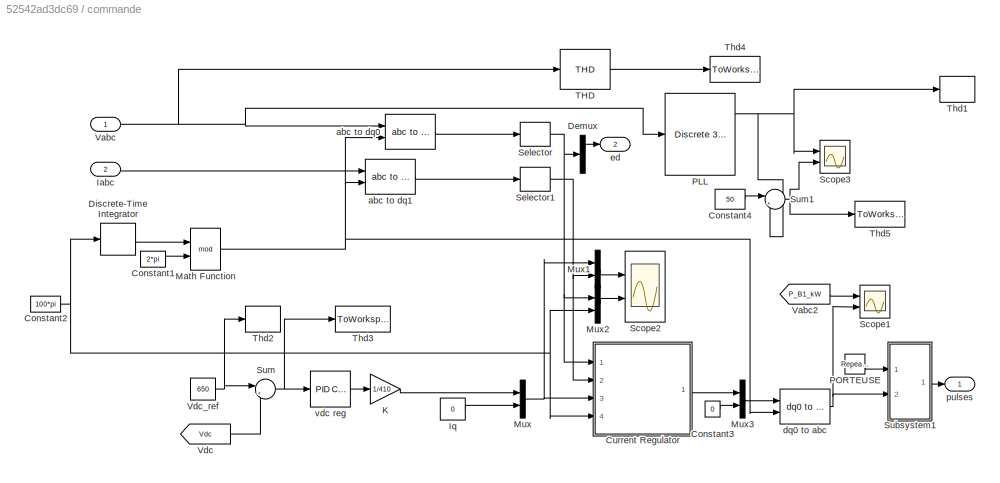
BLOCK [SubSystem] commande
  Ports = [2, 2]
  RequestExecContextInheritance = off
  Variant = off
BLOCK [Constant] commande/Constant1
  Value = 2*pi
BLOCK [Constant] commande/Constant2
  Value = 100*pi
BLOCK [Constant] commande/Constant3
  Value = 0
BLOCK [Constant] commande/Constant4
  Value = 50
BLOCK [SubSystem] commande/Current Regulator
  Ports = [4, 1]
  RequestExecContextInheritance = off
  Variant = off
BLOCK [Sum] commande/Current Regulator/Add1
  InputSameDT = off
  Inputs = +-
  OutDataTypeStr = Inherit: Inherit via internal rule
  Ports = [2, 1]
  SaturateOnIntegerOverflow = off
BLOCK [Sum] commande/Current Regulator/Add2
  InputSameDT = off
  OutDataTypeStr = Inherit: Inherit via internal rule
  Ports = [2, 1]
  SaturateOnIntegerOverflow = off
BLOCK [Sum] commande/Current Regulator/Add3
  InputSameDT = off
  OutDataTypeStr = Inherit: Inherit via internal rule
  Ports = [2, 1]
  SaturateOnIntegerOverflow = off
BLOCK [Sum] commande/Current Regulator/Add5
  InputSameDT = off
  Inputs = ++++
  OutDataTypeStr = Inherit: Inherit via internal rule
  Ports = [4, 1]
  SaturateOnIntegerOverflow = off
BLOCK [Sum] commande/Current Regulator/Add6
  InputSameDT = off
  OutDataTypeStr = Inherit: Inherit via internal rule
  Ports = [2, 1]
  SaturateOnIntegerOverflow = off
BLOCK [Demux] commande/Current Regulator/Demux
  DisplayOption = bar
  Outputs = 2
  Ports = [1, 2]
BLOCK [Demux] commande/Current Regulator/Demux1
  DisplayOption = bar
  Outputs = 2
  Ports = [1, 2]
BLOCK [DiscreteFilter] commande/Current Regulator/Discrete Filter
  Denominator = [1 -2*cos(100*pi) 1]
  InputPortMap = u0
  Numerator = [0.001 -0.001*cos(100*pi)]
  Ports = [1, 1]
  SampleTime = 1e-5
BLOCK [Reference] commande/Current Regulator/Discrete PID Controller  REF=simulink/Continuous/PID Controller
  Ports = [1, 1]
  SourceBlock = simulink/Continuous/PID Controller
  SourceType = PID 1dof
BLOCK [Reference] commande/Current Regulator/Discrete PID Controller4  REF=simulink/Continuous/PID Controller
  Ports = [1, 1]
  SourceBlock = simulink/Continuous/PID Controller
  SourceType = PID 1dof
BLOCK [Gain] commande/Current Regulator/Gain2
  OutDataTypeStr = Inherit: Inherit via internal rule
  ParamDataTypeStr = Inherit: Inherit via internal rule
  SaturateOnIntegerOverflow = off
BLOCK [Gain] commande/Current Regulator/Gain4
  OutDataTypeStr = Inherit: Inherit via internal rule
  ParamDataTypeStr = Inherit: Inherit via internal rule
  SaturateOnIntegerOverflow = off
BLOCK [Gain] commande/Current Regulator/Gain6
  OutDataTypeStr = Inherit: Inherit via internal rule
  ParamDataTypeStr = Inherit: Inherit via internal rule
  SaturateOnIntegerOverflow = off
BLOCK [Inport] commande/Current Regulator/IdIq_mes
  IconDisplay = Port number
  Port = 2
  PortDimensions = 2
BLOCK [Inport] commande/Current Regulator/IdIq_ref
  IconDisplay = Port number
  Port = 3
  PortDimensions = 2
BLOCK [Mux] commande/Current Regulator/Mux
  DisplayOption = bar
  Inputs = 2
  Ports = [2, 1]
BLOCK [Product] commande/Current Regulator/Product
  InputSameDT = off
  OutDataTypeStr = Inherit: Inherit via internal rule
  Ports = [2, 1]
  RndMeth = Floor
  SaturateOnIntegerOverflow = off
BLOCK [Product] commande/Current Regulator/Product1
  InputSameDT = off
  OutDataTypeStr = Inherit: Inherit via internal rule
  Ports = [2, 1]
  RndMeth = Floor
  SaturateOnIntegerOverflow = off
BLOCK [Gain] commande/Current Regulator/Rtot_pu1
  Gain = 2e-3
BLOCK [Gain] commande/Current Regulator/Rtot_pu3
  Gain = 2e-3
BLOCK [Saturate] commande/Current Regulator/Saturation
  InputPortMap = u0
  LowerLimit = -5
  Ports = [1, 1]
  UpperLimit = 5
BLOCK [Sum] commande/Current Regulator/Sum
  IconShape = round
  InputSameDT = off
  Inputs = |-+
  OutDataTypeStr = Inherit: Inherit via internal rule
  Ports = [2, 1]
  SaturateOnIntegerOverflow = off
BLOCK [Outport] commande/Current Regulator/VdVq_conv
  IconDisplay = Port number
BLOCK [Inport] commande/Current Regulator/VdVq_mes
  IconDisplay = Port number
  PortDimensions = 2
BLOCK [Inport] commande/Current Regulator/wf
  IconDisplay = Port number
  Port = 4
  PortDimensions = 1
BLOCK [Demux] commande/Demux
  DisplayOption = bar
  Outputs = 2
  Ports = [1, 2]
BLOCK [DiscreteIntegrator] commande/Discrete-Time Integrator
  ICPrevOutput = DiscIntNeverNeededParam
  ICPrevScaledInput = DiscIntNeverNeededParam
  Ports = [1, 1]
  SampleTime = 1e-5
BLOCK [Inport] commande/Iabc
  IconDisplay = Port number
  Port = 2
BLOCK [Constant] commande/Iq
  Value = 0
BLOCK [Gain] commande/K
  Gain = 1/410
  OutDataTypeStr = Inherit: Inherit via internal rule
  ParamDataTypeStr = Inherit: Inherit via internal rule
  SaturateOnIntegerOverflow = off
BLOCK [Math] commande/Math Function
  Operator = mod
  Ports = [2, 1]
BLOCK [Mux] commande/Mux
  DisplayOption = bar
  Inputs = 2
  Ports = [2, 1]
BLOCK [Mux] commande/Mux1
  DisplayOption = bar
  Inputs = 2
  Ports = [2, 1]
BLOCK [Mux] commande/Mux2
  DisplayOption = bar
  Inputs = 2
  Ports = [2, 1]
BLOCK [Mux] commande/Mux3
  DisplayOption = bar
  Inputs = 2
  Ports = [2, 1]
BLOCK [Reference] commande/PLL  REF=powerlib_extras/Discrete 
Control Blocks/Discrete
3-phase PLL
  Ports = [1, 3]
  SourceBlock = powerlib_extras/Discrete \nControl Blocks/Discrete\n3-phase PLL
  SourceType = Discrete 3-phase PLL
BLOCK [Reference] commande/PORTEUSE  REF=simulink/Sources/Repeating
Sequence
Interpolated
  Ports = [0, 1]
  SourceBlock = simulink/Sources/Repeating\nSequence\nInterpolated
  SourceType = Repeating Sequence Interpolated
BLOCK [Scope] commande/Scope1
  NumInputPorts = 2
  Ports = [2]
  ScopeSpecificationString = Simulink.scopes.TimeScopeBlockCfg('CurrentConfiguration', extmgr.ConfigurationSet(extmgr.Configuration('Core','General UI',true),extmgr.Configuration('Core','Source UI',true),extmgr.Configuration('Sources','WiredSimulink',true,'DataLoggingVariableName','ScopeData1','DataLoggingSaveFormat','StructureWithTime','DataLoggingMaxPoints','5000000','DataLoggingDecimation','3','DataLoggingDecimateData',tru...<+2547ch>
BLOCK [Scope] commande/Scope2
  NumInputPorts = 2
  Ports = [2]
  ScopeSpecificationString = Simulink.scopes.TimeScopeBlockCfg('CurrentConfiguration', extmgr.ConfigurationSet(extmgr.Configuration('Core','General UI',true),extmgr.Configuration('Core','Source UI',true),extmgr.Configuration('Sources','WiredSimulink',true,'DataLoggingVariableName','ScopeData3','DataLoggingSaveFormat','StructureWithTime','DataLoggingMaxPoints','5000000','DataLoggingDecimation','3','DataLoggingDecimateData',tru...<+2473ch>
BLOCK [Scope] commande/Scope3
  NumInputPorts = 2
  Ports = [2]
  ScopeSpecificationString = Simulink.scopes.TimeScopeBlockCfg('CurrentConfiguration', extmgr.ConfigurationSet(extmgr.Configuration('Core','General UI',true),extmgr.Configuration('Core','Source UI',true),extmgr.Configuration('Sources','WiredSimulink',true,'DataLoggingSaveFormat','StructureWithTime','DataLoggingMaxPoints','5000000','DataLoggingDecimation','3','DataLoggingDecimateData',true,'DataLoggingLimitDataPoints',true),ex...<+2353ch>
BLOCK [Selector] commande/Selector
  IndexOptions = Starting index (dialog)
  Indices = [1]
  InputPortWidth = 3
  OutputSizes = 2
  Ports = [1, 1]
BLOCK [Selector] commande/Selector1
  IndexOptions = Starting index (dialog)
  Indices = [1]
  InputPortWidth = 3
  OutputSizes = 2
  Ports = [1, 1]
BLOCK [SubSystem] commande/Subsystem1
  Ports = [2, 1]
  RequestExecContextInheritance = off
  Variant = off
BLOCK [Inport] commande/Subsystem1/ABC
  IconDisplay = Port number
  Port = 2
BLOCK [Demux] commande/Subsystem1/Demux
  DisplayOption = bar
  Outputs = 3
  Ports = [1, 3]
BLOCK [Gain] commande/Subsystem1/Gain
  Gain = 2/3
  OutDataTypeStr = Inherit: Inherit via internal rule
  ParamDataTypeStr = Inherit: Inherit via internal rule
  SaturateOnIntegerOverflow = off
BLOCK [Mux] commande/Subsystem1/Mux
  DisplayOption = bar
  Inputs = 6
  Ports = [6, 1]
BLOCK [Inport] commande/Subsystem1/POR
  IconDisplay = Port number
BLOCK [Relay] commande/Subsystem1/Relay
BLOCK [Relay] commande/Subsystem1/Relay1
BLOCK [Relay] commande/Subsystem1/Relay2
  OffOutputValue = 1
  OnOutputValue = 0
BLOCK [Relay] commande/Subsystem1/Relay3
BLOCK [Relay] commande/Subsystem1/Relay4
  OffOutputValue = 1
  OnOutputValue = 0
BLOCK [Relay] commande/Subsystem1/Relay5
  OffOutputValue = 1
  OnOutputValue = 0
BLOCK [Scope] commande/Subsystem1/Scope2
  NumInputPorts = 1
  Ports = [1]
  ScopeSpecificationString = C++SS(StrPVP('Location','[5, 48, 1029, 727]'),StrPVP('Open','off'),StrPVP('ZoomMode','xonly'),MxPVP('AxesTitles',24,'struct(''axes1'',''%<SignalLabel>'')'),MxPVP('ScopeGraphics',28,'struct(''FigureColor'',''[0.5 0.5 0.5]'',''AxesColor'',''[0 0 0]'',''AxesTickColor'',''[1 1 1]'',''LineColors'',''[1 1 0;1 0 1;0 1 1;1 0 0;0 1 0;0 0 1]'',''LineStyles'',''-|-|-|-|-|-'',''LineWidths'',''[0.5 0.5 0.5 0.5...<+373ch>
BLOCK [Sum] commande/Subsystem1/Subtract1
  InputSameDT = off
  Inputs = +-
  OutDataTypeStr = Inherit: Inherit via internal rule
  Ports = [2, 1]
  SaturateOnIntegerOverflow = off
BLOCK [Sum] commande/Subsystem1/Subtract2
  InputSameDT = off
  Inputs = +-
  OutDataTypeStr = Inherit: Inherit via internal rule
  Ports = [2, 1]
  SaturateOnIntegerOverflow = off
BLOCK [Sum] commande/Subsystem1/Subtract3
  InputSameDT = off
  Inputs = +-
  OutDataTypeStr = Inherit: Inherit via internal rule
  Ports = [2, 1]
  SaturateOnIntegerOverflow = off
BLOCK [Outport] commande/Subsystem1/pwm,1,2,3
  IconDisplay = Port number
BLOCK [Sum] commande/Sum
  IconShape = round
  InputSameDT = off
  Inputs = |+-
  OutDataTypeStr = Inherit: Inherit via internal rule
  Ports = [2, 1]
  SaturateOnIntegerOverflow = off
BLOCK [Sum] commande/Sum1
  IconShape = round
  InputSameDT = off
  Inputs = |+-
  OutDataTypeStr = Inherit: Inherit via internal rule
  Ports = [2, 1]
  SaturateOnIntegerOverflow = off
BLOCK [Reference] commande/THD  REF=powerlib_meascontrol/Measurements/THD
  Ports = [1, 1]
  SourceBlock = powerlib_meascontrol/Measurements/THD
  SourceType = THD
BLOCK [ToWorkspace] commande/Thd1
  FixptAsFi = on
  MaxDataPoints = inf
  Ports = [1]
  SampleTime = -1
  Save2DSignal = 3-D array (concatenate along third dimension)
  VariableName = f_flc9
BLOCK [ToWorkspace] commande/Thd2
  FixptAsFi = on
  MaxDataPoints = inf
  Ports = [1]
  SampleTime = -1
  Save2DSignal = 3-D array (concatenate along third dimension)
  VariableName = vdc_ref
BLOCK [ToWorkspace] commande/Thd3
  FixptAsFi = on
  MaxDataPoints = inf
  Ports = [1]
  SampleTime = -1
  Save2DSignal = 3-D array (concatenate along third dimension)
  VariableName = e_vdc_flc9
BLOCK [ToWorkspace] commande/Thd4
  FixptAsFi = on
  MaxDataPoints = inf
  Ports = [1]
  SampleTime = -1
  Save2DSignal = 3-D array (concatenate along third dimension)
  VariableName = e_f1_flc9
BLOCK [ToWorkspace] commande/Thd5
  FixptAsFi = on
  MaxDataPoints = inf
  Ports = [1]
  SampleTime = -1
  Save2DSignal = 3-D array (concatenate along third dimension)
  VariableName = e_f_flc9
BLOCK [Inport] commande/Vabc
  IconDisplay = Port number
BLOCK [From] commande/Vabc2
  GotoTag = P_B1_kW
  TagVisibility = global
BLOCK [From] commande/Vdc
  GotoTag = Vdc
  TagVisibility = global
BLOCK [Constant] commande/Vdc_ref
  Value = 650
BLOCK [Reference] commande/abc to dq0  REF=powerlib_meascontrol/Transformations/abc to dq0
  Ports = [2, 1]
  SourceBlock = powerlib_meascontrol/Transformations/abc to dq0
  SourceType = abc to dq0 Transformation
BLOCK [Reference] commande/abc to dq1  REF=powerlib_meascontrol/Transformations/abc to dq0
  Ports = [2, 1]
  SourceBlock = powerlib_meascontrol/Transformations/abc to dq0
  SourceType = abc to dq0 Transformation
BLOCK [Reference] commande/dq0 to abc  REF=powerlib_meascontrol/Transformations/dq0 to abc
  Ports = [2, 1]
  SourceBlock = powerlib_meascontrol/Transformations/dq0 to abc
  SourceType = dq0 to abc Transformation
BLOCK [Outport] commande/ed
  IconDisplay = Port number
  Port = 2
BLOCK [Outport] commande/pulses
  IconDisplay = Port number
BLOCK [Reference] commande/vdc reg  REF=simulink/Continuous/PID Controller
  Ports = [1, 1]
  SourceBlock = simulink/Continuous/PID Controller
  SourceType = PID 1dof
BLOCK [Reference] powergui  REF=powerlib/powergui
  Ports = []
  Priority = 1
  SourceBlock = powerlib/powergui
  SourceType = PSB option menu block
BLOCK [SubSystem] vdc bus
  Ports = [0, 0, 0, 0, 0, 2, 2]
  RequestExecContextInheritance = off
  Variant = off
BLOCK [Reference] vdc bus/C4  REF=powerlib/Elements/Series RLC Branch
  AttributesFormatString = \n
  Ports = [0, 0, 0, 0, 0, 1, 1]
  SourceBlock = powerlib/Elements/Series RLC Branch
  SourceType = Series RLC Branch
BLOCK [Reference] vdc bus/I  REF=powerlib/Measurements/Current Measurement
  Ports = [0, 1, 0, 0, 0, 1, 1]
  SourceBlock = powerlib/Measurements/Current Measurement
  SourceType = Current Measurement
  UserDataPersistent = on
BLOCK [Reference] vdc bus/Vdc 1  REF=powerlib/Measurements/Voltage Measurement
  AttributesFormatString = \n
  Ports = [0, 1, 0, 0, 0, 2]
  SourceBlock = powerlib/Measurements/Voltage Measurement
  SourceType = Voltage Measurement
  Tag = PoWeRsYsTeMmEaSuReMeNt
BLOCK [Goto] vdc bus/idc
  GotoTag = Idc
  TagVisibility = global
BLOCK [PMIOPort] vdc bus/in -
  Port = 3
  Side = Left
BLOCK [PMIOPort] vdc bus/in+
  Port = 1
  Side = Left
BLOCK [PMIOPort] vdc bus/out +
  Port = 2
  Side = Right
BLOCK [PMIOPort] vdc bus/out -
  Port = 4
  Side = Right
BLOCK [Goto] vdc bus/vdc
  GotoTag = Vdc
  TagVisibility = global
ANNOTATION (root): 100-kW PV Array Maximum Power 330 * SunPower SPR-305
ANNOTATION PV ARRAY/PV Array1: Diode characteristic Id=Isat*[exp(Vd/VT) -1] where: Id = diode cuurent (A) Vd = diode voltage (V) Isat = diode saturation current (A) VT = temperature voltage = k*T/q*Qd*Ncell*Nser T = cell temperature (K), k = Boltzman constant = 1.3806e-23 J.K^-1 q = electron charge = 1.6022e-19 C Qd = diode quality factor Ncell= number of series-connected cells per module Nser = number of series-connected modul...<+13ch>
ANNOTATION PV ARRAY/PV Array1/Diode: Id=Isat*[exp(Vd/Vt)-1]
ANNOTATION commande/Current Regulator: (Vd_prim - Vd_conv) ~= + Iq * Ltot
ANNOTATION commande/Current Regulator: (Vq_prim - Vq_conv) ~ = - Id * Ltot
ANNOTATION commande/Current Regulator: Current Regulator (with feedforward)
ANNOTATION commande/Current Regulator: For Ltot >> Rtot :
ANNOTATION commande/Current Regulator: Id positive --> The converter generates active power ("Inverter mode") = Active Power P positive
ANNOTATION commande/Current Regulator: Iq positive --> The converter absorbs reactive power ("Inductive mode") = Reactive Power Q negative
ANNOTATION commande/Current Regulator: Ltot = Lxfo + Lchoke Rtot = Rxfo + Rchoke
ANNOTATION commande/Current Regulator: Sign Convention: Current going out of the converter = positive current
ANNOTATION commande/Current Regulator: Vd_mes + Id*R - Iq*L + deriv(Id)*L/wbase= Vd_conv
ANNOTATION commande/Current Regulator: Vq_mes + Id*L + Iq*R + deriv(Iq)*L/wbase= Vq_conv
ANNOTATION commande/Current Regulator: harmonic filter neglected
ANNOTATION commande/Subsystem1: 7.1614*10^3
LINE Clock:1 -> To Workspace:1
LINE ENEO/Constant:1 -> ENEO/Divide:2
NET ENEO/Difference:1 -> ENEO/Mux:2, ENEO/Thd3:1
NET ENEO/Divide:1 -> ENEO/Goto1:1, ENEO/Scope4:1, ENEO/Thd5:1
LINE ENEO/From2:1 -> ENEO/Product:2
LINE ENEO/Fuzzy Logic Controller:1 -> ENEO/Gain:1
LINE ENEO/Gain:1 -> ENEO/Sum2:1
LINE ENEO/Memory:1 -> ENEO/Sum2:2
LINE ENEO/Mux:1 -> ENEO/Fuzzy Logic Controller:1
NET ENEO/Product:1 -> ENEO/Divide:1, ENEO/Scope5:1, ENEO/Thd4:1
LINE ENEO/Pulse Generator/D:1 -> ENEO/Pulse Generator/Relational Operator:2
LINE ENEO/Pulse Generator/Relational Operator:1 -> ENEO/Pulse Generator/Pulses:1
LINE ENEO/Pulse Generator/Repeating Sequence:1 -> ENEO/Pulse Generator/Relational Operator:1
LINE ENEO/Pulse Generator:1 -> ENEO/boost converter1:1
LINE ENEO/Saturation:1 -> ENEO/Pulse Generator:1
NET ENEO/Sum1:1 -> ENEO/Difference:1, ENEO/Mux:1, ENEO/Scope3:1, ENEO/Thd1:1
NET ENEO/Sum2:1 -> ENEO/Memory:1, ENEO/Scope1:1, ENEO/Sum:1, ENEO/Thd2:1
LINE ENEO/Sum:1 -> ENEO/vdc reg:1
NET ENEO/Vdc:1 -> ENEO/Product:1, ENEO/Scope:1, ENEO/Sum:2, ENEO/Thd:1
LINE ENEO/boost converter1/I:1 -> ENEO/boost converter1/idc:1
LINE ENEO/boost converter1/pwm:1 -> ENEO/boost converter1/IGBT1:1
LINE ENEO/c:1 -> ENEO/Sum1:2
LINE ENEO/temperature1:1 -> ENEO/Sum1:1
LINE ENEO/vdc reg:1 -> ENEO/Saturation:1
LINE Iabc:1 -> commande:2
NET PV ARRAY/Boost Converter Control (MPPT)/Constant:1 -> PV ARRAY/Boost Converter Control (MPPT)/Switch:2, PV ARRAY/Boost Converter Control (MPPT)/Switch:3
LINE PV ARRAY/Boost Converter Control (MPPT)/I_PV:1 -> PV ARRAY/Boost Converter Control (MPPT)/Subsystem2:2
LINE PV ARRAY/Boost Converter Control (MPPT)/Pulse Generator/D:1 -> PV ARRAY/Boost Converter Control (MPPT)/Pulse Generator/Relational Operator:2
LINE PV ARRAY/Boost Converter Control (MPPT)/Pulse Generator/Relational Operator:1 -> PV ARRAY/Boost Converter Control (MPPT)/Pulse Generator/Pulses:1
LINE PV ARRAY/Boost Converter Control (MPPT)/Pulse Generator/Repeating Sequence:1 -> PV ARRAY/Boost Converter Control (MPPT)/Pulse Generator/Relational Operator:1
LINE PV ARRAY/Boost Converter Control (MPPT)/Pulse Generator:1 -> PV ARRAY/Boost Converter Control (MPPT)/Pulses:1
LINE PV ARRAY/Boost Converter Control (MPPT)/Saturation:1 -> PV ARRAY/Boost Converter Control (MPPT)/Switch:1
LINE PV ARRAY/Boost Converter Control (MPPT)/Subsystem2/Delay1:1 -> PV ARRAY/Boost Converter Control (MPPT)/Subsystem2/Sum1:2
LINE PV ARRAY/Boost Converter Control (MPPT)/Subsystem2/Delay:1 -> PV ARRAY/Boost Converter Control (MPPT)/Subsystem2/Sum:2
NET PV ARRAY/Boost Converter Control (MPPT)/Subsystem2/MATLAB Function:1 -> PV ARRAY/Boost Converter Control (MPPT)/Subsystem2/D:1, PV ARRAY/Boost Converter Control (MPPT)/Subsystem2/Memory:1
LINE PV ARRAY/Boost Converter Control (MPPT)/Subsystem2/Memory:1 -> PV ARRAY/Boost Converter Control (MPPT)/Subsystem2/MATLAB Function:3
NET PV ARRAY/Boost Converter Control (MPPT)/Subsystem2/Product2:1 -> PV ARRAY/Boost Converter Control (MPPT)/Subsystem2/Delay1:1, PV ARRAY/Boost Converter Control (MPPT)/Subsystem2/Sum1:1
LINE PV ARRAY/Boost Converter Control (MPPT)/Subsystem2/Sum1:1 -> PV ARRAY/Boost Converter Control (MPPT)/Subsystem2/MATLAB Function:2
LINE PV ARRAY/Boost Converter Control (MPPT)/Subsystem2/Sum:1 -> PV ARRAY/Boost Converter Control (MPPT)/Subsystem2/MATLAB Function:1
LINE PV ARRAY/Boost Converter Control (MPPT)/Subsystem2/current :1 -> PV ARRAY/Boost Converter Control (MPPT)/Subsystem2/Product2:2
NET PV ARRAY/Boost Converter Control (MPPT)/Subsystem2/voltage :1 -> PV ARRAY/Boost Converter Control (MPPT)/Subsystem2/Delay:1, PV ARRAY/Boost Converter Control (MPPT)/Subsystem2/Product2:1, PV ARRAY/Boost Converter Control (MPPT)/Subsystem2/Sum:1
LINE PV ARRAY/Boost Converter Control (MPPT)/Subsystem2:1 -> PV ARRAY/Boost Converter Control (MPPT)/Saturation:1
LINE PV ARRAY/Boost Converter Control (MPPT)/Switch:1 -> PV ARRAY/Boost Converter Control (MPPT)/Pulse Generator:1
LINE PV ARRAY/Boost Converter Control (MPPT)/V_PV:1 -> PV ARRAY/Boost Converter Control (MPPT)/Subsystem2:1
LINE PV ARRAY/Boost Converter Control (MPPT):1 -> PV ARRAY/boost converter:1
LINE PV ARRAY/From2:1 -> PV ARRAY/Boost Converter Control (MPPT):2
LINE PV ARRAY/From3:1 -> PV ARRAY/Boost Converter Control (MPPT):1
NET PV ARRAY/Irradiance (W//m2) 1:1 -> PV ARRAY/Irradiance (W//m^2):1, PV ARRAY/PV Array1:1, PV ARRAY/Thd5:1
LINE PV ARRAY/PV Array1/Add:1 -> PV ARRAY/PV Array1/Mux3:1
LINE PV ARRAY/PV Array1/Diode/Add:1 -> PV ARRAY/PV Array1/Diode/Product:2
LINE PV ARRAY/PV Array1/Diode/Is:1 -> PV ARRAY/PV Array1/Diode/Product:1
LINE PV ARRAY/PV Array1/Diode/Math Function:1 -> PV ARRAY/PV Array1/Diode/Add:1
LINE PV ARRAY/PV Array1/Diode/Product1:1 -> PV ARRAY/PV Array1/Diode/Math Function:1
LINE PV ARRAY/PV Array1/Diode/Product2:1 -> PV ARRAY/PV Array1/Diode/Product1:2
NET PV ARRAY/PV Array1/Diode/Product:1 -> PV ARRAY/PV Array1/Diode/Id:1, PV ARRAY/PV Array1/Diode/Idiode:1
LINE PV ARRAY/PV Array1/Diode/T:1 -> PV ARRAY/PV Array1/Diode/t0_kW:1
LINE PV ARRAY/PV Array1/Diode/Unit Delay:1 -> PV ARRAY/PV Array1/Diode/Product1:1
LINE PV ARRAY/PV Array1/Diode/VT:1 -> PV ARRAY/PV Array1/Diode/Product2:1
NET PV ARRAY/PV Array1/Diode/Vd:1 -> PV ARRAY/PV Array1/Diode/Unit Delay:1, PV ARRAY/PV Array1/Diode/Vdiode:1
LINE PV ARRAY/PV Array1/Diode/one:1 -> PV ARRAY/PV Array1/Diode/Add:2
LINE PV ARRAY/PV Array1/Diode/t0_kW:1 -> PV ARRAY/PV Array1/Diode/Product2:2
LINE PV ARRAY/PV Array1/Diode:1 -> PV ARRAY/PV Array1/Add:1
LINE PV ARRAY/PV Array1/Diode:2 -> PV ARRAY/PV Array1/Mux3:3
NET PV ARRAY/PV Array1/I_PV:1 -> PV ARRAY/PV Array1/Mux3:2, PV ARRAY/PV Array1/Rs_:1
NET PV ARRAY/PV Array1/Ir:1 -> PV ARRAY/PV Array1/Mux3:4, PV ARRAY/PV Array1/PHOTO CURRENT:1
LINE PV ARRAY/PV Array1/Mux3:1 -> PV ARRAY/PV Array1/m:1
LINE PV ARRAY/PV Array1/PHOTO CURRENT/Current temp coeft  in short circuit:1 -> PV ARRAY/PV Array1/PHOTO CURRENT/Product:1
LINE PV ARRAY/PV Array1/PHOTO CURRENT/Divide:1 -> PV ARRAY/PV Array1/PHOTO CURRENT/t0_kW:1
LINE PV ARRAY/PV Array1/PHOTO CURRENT/G:1 -> PV ARRAY/PV Array1/PHOTO CURRENT/Product1:1
LINE PV ARRAY/PV Array1/PHOTO CURRENT/Product1:1 -> PV ARRAY/PV Array1/PHOTO CURRENT/Divide:1
LINE PV ARRAY/PV Array1/PHOTO CURRENT/Product:1 -> PV ARRAY/PV Array1/PHOTO CURRENT/Sum3:1
LINE PV ARRAY/PV Array1/PHOTO CURRENT/Sum1:1 -> PV ARRAY/PV Array1/PHOTO CURRENT/Product:2
LINE PV ARRAY/PV Array1/PHOTO CURRENT/Sum2:1 -> PV ARRAY/PV Array1/PHOTO CURRENT/Sum1:2
LINE PV ARRAY/PV Array1/PHOTO CURRENT/Sum3:1 -> PV ARRAY/PV Array1/PHOTO CURRENT/Product1:2
NET PV ARRAY/PV Array1/PHOTO CURRENT/Sum:1 -> PV ARRAY/PV Array1/PHOTO CURRENT/Sum1:1, PV ARRAY/PV Array1/PHOTO CURRENT/dT:1
NET PV ARRAY/PV Array1/PHOTO CURRENT/T ONVER IN °K :1 -> PV ARRAY/PV Array1/PHOTO CURRENT/Sum2:1, PV ARRAY/PV Array1/PHOTO CURRENT/Sum:2
LINE PV ARRAY/PV Array1/PHOTO CURRENT/T:1 -> PV ARRAY/PV Array1/PHOTO CURRENT/Sum:1
LINE PV ARRAY/PV Array1/PHOTO CURRENT/Tref:1 -> PV ARRAY/PV Array1/PHOTO CURRENT/Sum2:2
LINE PV ARRAY/PV Array1/PHOTO CURRENT/current in short circuit:1 -> PV ARRAY/PV Array1/PHOTO CURRENT/Sum3:2
LINE PV ARRAY/PV Array1/PHOTO CURRENT/ensoleillement de ref:1 -> PV ARRAY/PV Array1/PHOTO CURRENT/Divide:2
LINE PV ARRAY/PV Array1/PHOTO CURRENT/t0_kW:1 -> PV ARRAY/PV Array1/PHOTO CURRENT/Iph :1
LINE PV ARRAY/PV Array1/PHOTO CURRENT:1 -> PV ARRAY/PV Array1/Iph:1
LINE PV ARRAY/PV Array1/PHOTO CURRENT:2 -> PV ARRAY/PV Array1/Diode:1
LINE PV ARRAY/PV Array1/Rs_:1 -> PV ARRAY/PV Array1/Add:2
LINE PV ARRAY/PV Array1/T:1 -> PV ARRAY/PV Array1/PHOTO CURRENT:2
LINE PV ARRAY/PV Array1:1 -> PV ARRAY/Goto2:1
LINE PV ARRAY/boost converter/pwm:1 -> PV ARRAY/boost converter/IGBT1:1
LINE PV ARRAY/irradiation:1 -> PV ARRAY/Scope:1
LINE PV ARRAY/temperature:1 -> PV ARRAY/PV Array1:2
LINE Subsystem2/Constant4:1 -> Subsystem2/Divide3:2
LINE Subsystem2/Constant:1 -> Subsystem2/Product2:1
LINE Subsystem2/Demux1:1 -> Subsystem2/Goto3:1
LINE Subsystem2/Demux1:2 -> Subsystem2/Goto4:1
LINE Subsystem2/Demux1:3 -> Subsystem2/Goto6:1
LINE Subsystem2/Demux1:4 -> Subsystem2/Goto8:1
NET Subsystem2/Divide3:1 -> Subsystem2/Scope9:4, Subsystem2/Sum1:2, Subsystem2/Thd11:1
LINE Subsystem2/From10:1 -> Subsystem2/Product1:1
LINE Subsystem2/From11:1 -> Subsystem2/Product1:2
NET Subsystem2/From12:1 -> Subsystem2/Power (Positive-Sequence):2, Subsystem2/Selector1:1
LINE Subsystem2/From13:1 -> Subsystem2/PV:3
LINE Subsystem2/From1:1 -> Subsystem2/Demux1:1
NET Subsystem2/From2:1 -> Subsystem2/Scope1:1, Subsystem2/Thd3:1
NET Subsystem2/From3:1 -> Subsystem2/Power (Positive-Sequence):1, Subsystem2/Selector:1
LINE Subsystem2/From4:1 -> Subsystem2/Scope2:1
NET Subsystem2/From5:1 -> Subsystem2/Scope9:3, Subsystem2/Sum1:1
NET Subsystem2/From8:1 -> Subsystem2/PV:2, Subsystem2/Thd1:1
LINE Subsystem2/From9:1 -> Subsystem2/PV:1
LINE Subsystem2/From:1 -> Subsystem2/Product2:2
LINE Subsystem2/Gain1:1 -> Subsystem2/Thd5:1
LINE Subsystem2/Gain:1 -> Subsystem2/Thd:1
NET Subsystem2/Mux1:1 -> Subsystem2/Goto5:1, Subsystem2/Goto7:1, Subsystem2/Scope3:1, Subsystem2/Thd2:1
NET Subsystem2/Mux:1 -> Subsystem2/Scope4:1, Subsystem2/Scope5:1
NET Subsystem2/Power (Positive-Sequence):1 -> Subsystem2/Mux1:1, Subsystem2/Thd7:1
NET Subsystem2/Power (Positive-Sequence):2 -> Subsystem2/Mux1:2, Subsystem2/Thd8:1
LINE Subsystem2/Product1:1 -> Subsystem2/Divide3:1
NET Subsystem2/Product2:1 -> Subsystem2/Display1:1, Subsystem2/Scope8:1, Subsystem2/Scope9:2
NET Subsystem2/Selector1:1 -> Subsystem2/Gain1:1, Subsystem2/Goto2:1, Subsystem2/Mux:2, Subsystem2/THD2:1
NET Subsystem2/Selector:1 -> Subsystem2/Gain:1, Subsystem2/Goto1:1, Subsystem2/Mux:1, Subsystem2/THD1:1
NET Subsystem2/Sum1:1 -> Subsystem2/Display2:1, Subsystem2/Scope9:1, Subsystem2/Thd12:1
LINE Subsystem2/THD1:1 -> Subsystem2/Thd4:1
LINE Subsystem2/THD2:1 -> Subsystem2/Thd6:1
LINE Vabc:1 -> commande:1
LINE commande/Constant1:1 -> commande/Math Function:2
NET commande/Constant2:1 -> commande/Current Regulator:4, commande/Discrete-Time Integrator:1, commande/Mux2:2
LINE commande/Constant3:1 -> commande/Mux3:2
LINE commande/Constant4:1 -> commande/Sum1:1
LINE commande/Current Regulator/Add1:1 -> commande/Current Regulator/Mux:1
NET commande/Current Regulator/Add2:1 -> commande/Current Regulator/Discrete Filter:1, commande/Current Regulator/Discrete PID Controller4:1
LINE commande/Current Regulator/Add3:1 -> commande/Current Regulator/Mux:2
LINE commande/Current Regulator/Add5:1 -> commande/Current Regulator/Add6:1
LINE commande/Current Regulator/Add6:1 -> commande/Current Regulator/VdVq_conv:1
LINE commande/Current Regulator/Demux1:1 -> commande/Current Regulator/Product1:1
LINE commande/Current Regulator/Demux1:2 -> commande/Current Regulator/Product:1
LINE commande/Current Regulator/Demux:1 -> commande/Current Regulator/Add1:1
LINE commande/Current Regulator/Demux:2 -> commande/Current Regulator/Add3:1
LINE commande/Current Regulator/Discrete Filter:1 -> commande/Current Regulator/Add5:2
LINE commande/Current Regulator/Discrete PID Controller4:1 -> commande/Current Regulator/Add5:1
LINE commande/Current Regulator/Discrete PID Controller:1 -> commande/Current Regulator/Add2:1
LINE commande/Current Regulator/Gain2:1 -> commande/Current Regulator/Demux:1
NET commande/Current Regulator/Gain4:1 -> commande/Current Regulator/Demux1:1, commande/Current Regulator/Sum:1
LINE commande/Current Regulator/Gain6:1 -> commande/Current Regulator/Sum:2
LINE commande/Current Regulator/IdIq_mes:1 -> commande/Current Regulator/Gain4:1
LINE commande/Current Regulator/IdIq_ref:1 -> commande/Current Regulator/Gain6:1
LINE commande/Current Regulator/Mux:1 -> commande/Current Regulator/Add2:2
LINE commande/Current Regulator/Product1:1 -> commande/Current Regulator/Rtot_pu3:1
LINE commande/Current Regulator/Product:1 -> commande/Current Regulator/Rtot_pu1:1
LINE commande/Current Regulator/Rtot_pu1:1 -> commande/Current Regulator/Add1:2
LINE commande/Current Regulator/Rtot_pu3:1 -> commande/Current Regulator/Add3:2
LINE commande/Current Regulator/Sum:1 -> commande/Current Regulator/Discrete PID Controller:1
LINE commande/Current Regulator/VdVq_mes:1 -> commande/Current Regulator/Gain2:1
NET commande/Current Regulator/wf:1 -> commande/Current Regulator/Product1:2, commande/Current Regulator/Product:2
LINE commande/Current Regulator:1 -> commande/Mux3:1
LINE commande/Demux:1 -> commande/ed:1
LINE commande/Discrete-Time Integrator:1 -> commande/Math Function:1
LINE commande/Iabc:1 -> commande/abc to dq1:1
LINE commande/Iq:1 -> commande/Mux:2
LINE commande/K:1 -> commande/Mux:1
NET commande/Math Function:1 -> commande/abc to dq0:2, commande/abc to dq1:2, commande/dq0 to abc:2
LINE commande/Mux1:1 -> commande/Scope2:1
LINE commande/Mux2:1 -> commande/Scope2:2
LINE commande/Mux3:1 -> commande/dq0 to abc:1
NET commande/Mux:1 -> commande/Current Regulator:3, commande/Mux1:1
NET commande/PLL:1 -> commande/Scope3:1, commande/Sum1:2, commande/Thd1:1
LINE commande/PORTEUSE:1 -> commande/Subsystem1:1
NET commande/Selector1:1 -> commande/Current Regulator:2, commande/Mux1:2
NET commande/Selector:1 -> commande/Current Regulator:1, commande/Demux:1, commande/Mux2:1
LINE commande/Subsystem1/ABC:1 -> commande/Subsystem1/Gain:1
LINE commande/Subsystem1/Demux:1 -> commande/Subsystem1/Subtract1:1
LINE commande/Subsystem1/Demux:2 -> commande/Subsystem1/Subtract2:1
LINE commande/Subsystem1/Demux:3 -> commande/Subsystem1/Subtract3:1
NET commande/Subsystem1/Gain:1 -> commande/Subsystem1/Demux:1, commande/Subsystem1/Scope2:1
LINE commande/Subsystem1/Mux:1 -> commande/Subsystem1/pwm,1,2,3:1
NET commande/Subsystem1/POR:1 -> commande/Subsystem1/Subtract1:2, commande/Subsystem1/Subtract2:2, commande/Subsystem1/Subtract3:2
LINE commande/Subsystem1/Relay1:1 -> commande/Subsystem1/Mux:3
LINE commande/Subsystem1/Relay2:1 -> commande/Subsystem1/Mux:2
LINE commande/Subsystem1/Relay3:1 -> commande/Subsystem1/Mux:5
LINE commande/Subsystem1/Relay4:1 -> commande/Subsystem1/Mux:4
LINE commande/Subsystem1/Relay5:1 -> commande/Subsystem1/Mux:6
LINE commande/Subsystem1/Relay:1 -> commande/Subsystem1/Mux:1
NET commande/Subsystem1/Subtract1:1 -> commande/Subsystem1/Relay2:1, commande/Subsystem1/Relay:1
NET commande/Subsystem1/Subtract2:1 -> commande/Subsystem1/Relay1:1, commande/Subsystem1/Relay4:1
NET commande/Subsystem1/Subtract3:1 -> commande/Subsystem1/Relay3:1, commande/Subsystem1/Relay5:1
LINE commande/Subsystem1:1 -> commande/pulses:1
NET commande/Sum1:1 -> commande/Scope3:2, commande/Thd5:1
NET commande/Sum:1 -> commande/Thd3:1, commande/vdc reg:1
LINE commande/THD:1 -> commande/Thd4:1
LINE commande/Vabc2:1 -> commande/Scope1:1
NET commande/Vabc:1 -> commande/PLL:1, commande/THD:1, commande/abc to dq0:1
LINE commande/Vdc:1 -> commande/Sum:2
NET commande/Vdc_ref:1 -> commande/Sum:1, commande/Thd2:1
LINE commande/abc to dq0:1 -> commande/Selector:1
LINE commande/abc to dq1:1 -> commande/Selector1:1
NET commande/dq0 to abc:1 -> commande/Scope1:2, commande/Subsystem1:2
LINE commande/vdc reg:1 -> commande/K:1
LINE commande:1 -> VSC:1
LINE commande:2 -> ENEO:1
LINE vdc bus/I:1 -> vdc bus/idc:1
LINE vdc bus/Vdc 1:1 -> vdc bus/vdc:1
PLINE ENEO/ENEO:LConn1 -- ENEO/PD2:LConn2
PLINE ENEO/ENEO:RConn1 -- ENEO/PD2:LConn1
PLINE ENEO/OUT+:RConn1 -- ENEO/boost converter1:RConn1
PLINE ENEO/OUT-:RConn1 -- ENEO/boost converter1:RConn2
PLINE ENEO/PD2:RConn1 -- ENEO/boost converter1:LConn1
PLINE ENEO/PD2:RConn2 -- ENEO/boost converter1:LConn2
PNET net1: ENEO/boost converter1/C1:LConn1 -- ENEO/boost converter1/L1:LConn1 -- ENEO/boost converter1/in +:RConn1
PNET net2: ENEO/boost converter1/C1:RConn1 -- ENEO/boost converter1/IGBT1:RConn1 -- ENEO/boost converter1/in -:RConn1 -- ENEO/boost converter1/out -:RConn1
PNET net3: ENEO/boost converter1/Diode1:LConn1 -- ENEO/boost converter1/I:RConn1 -- ENEO/boost converter1/IGBT1:LConn1
PLINE ENEO/boost converter1/Diode1:RConn1 -- ENEO/boost converter1/out +:RConn1
PLINE ENEO/boost converter1/I:LConn1 -- ENEO/boost converter1/L1:RConn1
PNET net4: ENEO:RConn1 -- PV ARRAY:RConn1 -- vdc bus:LConn1
PNET net5: ENEO:RConn2 -- PV ARRAY:RConn2 -- vdc bus:LConn2
PLINE L fILTER :LConn1 -- VSC:LConn1
PLINE L fILTER :LConn2 -- VSC:LConn2
PLINE L fILTER :LConn3 -- VSC:LConn3
PNET net6: L fILTER :RConn1 -- V-I :LConn1 -- VSC1:LConn1
PNET net7: L fILTER :RConn2 -- V-I :LConn2 -- VSC1:LConn2
PNET net8: L fILTER :RConn3 -- V-I :LConn3 -- VSC1:LConn3
PLINE LOAD1:LConn1 -- Three-Phase Breaker:RConn1
PLINE LOAD1:LConn2 -- Three-Phase Breaker:RConn2
PLINE LOAD1:LConn3 -- Three-Phase Breaker:RConn3
PLINE LOAD2:LConn1 -- Three-Phase Breaker1:RConn3
PLINE LOAD2:LConn2 -- Three-Phase Breaker1:RConn2
PLINE LOAD2:LConn3 -- Three-Phase Breaker1:RConn1
PNET net9: LOAD:LConn1 -- Three-Phase Breaker1:LConn1 -- Three-Phase Breaker:LConn1 -- V-I :RConn1
PNET net10: LOAD:LConn2 -- Three-Phase Breaker1:LConn2 -- Three-Phase Breaker:LConn2 -- V-I :RConn2
PNET net11: LOAD:LConn3 -- Three-Phase Breaker1:LConn3 -- Three-Phase Breaker:LConn3 -- V-I :RConn3
PLINE PV ARRAY/OUT+:RConn1 -- PV ARRAY/boost converter:RConn1
PLINE PV ARRAY/OUT-:RConn1 -- PV ARRAY/boost converter:RConn2
PLINE PV ARRAY/PV Array1/+:RConn1 -- PV ARRAY/PV Array1/I_PV:RConn1
PNET net12: PV ARRAY/PV Array1/-:RConn1 -- PV ARRAY/PV Array1/Diode:RConn1 -- PV ARRAY/PV Array1/Iph:LConn1 -- PV ARRAY/PV Array1/Rp:RConn1
PNET net13: PV ARRAY/PV Array1/Diode/A:RConn1 -- PV ARRAY/PV Array1/Diode/Id:LConn1 -- PV ARRAY/PV Array1/Diode/Vd:LConn1
PNET net14: PV ARRAY/PV Array1/Diode/Id:RConn1 -- PV ARRAY/PV Array1/Diode/K:RConn1 -- PV ARRAY/PV Array1/Diode/Vd:LConn2
PNET net15: PV ARRAY/PV Array1/Diode:LConn1 -- PV ARRAY/PV Array1/Iph:RConn1 -- PV ARRAY/PV Array1/Rp:LConn1 -- PV ARRAY/PV Array1/Rs:RConn1
PLINE PV ARRAY/PV Array1/I_PV:LConn1 -- PV ARRAY/PV Array1/Rs:LConn1
PLINE PV ARRAY/PV Array1:RConn1 -- PV ARRAY/boost converter:LConn1
PLINE PV ARRAY/PV Array1:RConn2 -- PV ARRAY/boost converter:LConn2
PNET net16: PV ARRAY/boost converter/C1:LConn1 -- PV ARRAY/boost converter/L1:LConn1 -- PV ARRAY/boost converter/in +:RConn1
PNET net17: PV ARRAY/boost converter/C1:RConn1 -- PV ARRAY/boost converter/IGBT1:RConn1 -- PV ARRAY/boost converter/in -:RConn1 -- PV ARRAY/boost converter/out -:RConn1
PNET net18: PV ARRAY/boost converter/Diode1:LConn1 -- PV ARRAY/boost converter/IGBT1:LConn1 -- PV ARRAY/boost converter/L1:RConn1
PLINE PV ARRAY/boost converter/Diode1:RConn1 -- PV ARRAY/boost converter/out +:RConn1
PLINE Series RLC Load:LConn1 -- VSC1:RConn1
PLINE Series RLC Load:RConn1 -- VSC1:RConn2
PLINE VSC:RConn1 -- vdc bus:RConn1
PLINE VSC:RConn2 -- vdc bus:RConn2
PNET net19: vdc bus/C4:LConn1 -- vdc bus/I:LConn1 -- vdc bus/Vdc 1:LConn1 -- vdc bus/in+:RConn1
PNET net20: vdc bus/C4:RConn1 -- vdc bus/Vdc 1:LConn2 -- vdc bus/in -:RConn1 -- vdc bus/out -:RConn1
PLINE vdc bus/I:RConn1 -- vdc bus/out +:RConn1
note: NET lines group one-source signal fan-out (src -> all destinations, sorted); 1:1 wires keep LINE; PNET lines group multi-terminal physical nets as a canonical sorted terminal list (undirected conserving connections); 2-terminal nets keep the pairwise PLINE form
CHART PV ARRAY/Boost Converter
Control (MPPT)/Subsystem2/MATLAB Function states=1 transitions=1
  STATE_LABEL 'eML_blk_kernel()'
  STATE_LABEL 'SCRIPT:\nfunction D = fcn(DV,DP,d)\nD=0;p=0.001;\n    if(DP>0)\n        if(DV>0)\n         D=d-p;\n        else\n            D=d+p;\n        end\n    end\n    if(DP<0)\n        if(DV>0)\n         D=d+p;\n        else\n            D=d-p;\n      \n        end\n    end\n     if DP==0\n        D=d;\n    end \n    if D>1\n        D=1;\n    end \n    if D<0\n        D=0;\n    end\nend\n        '
